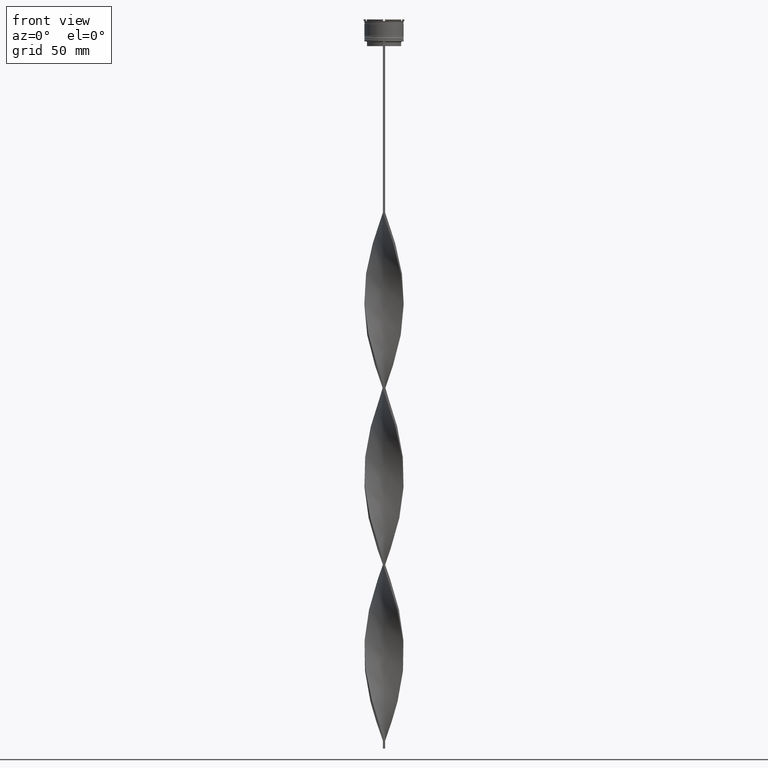
[diagram: clean part render]
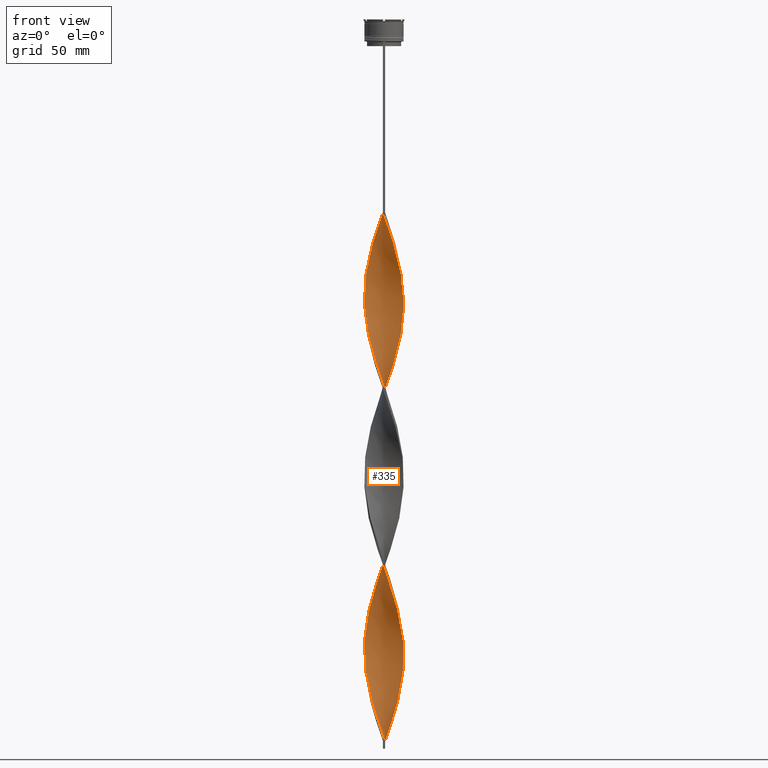
[diagram: same view with one face highlighted and labeled with its STEP entity id]
A machine part, front view. The second image highlights one B-rep face of the part: STEP entity #335.
In plain terms, the highlighted face is a freeform B-spline surface patch.
Its self-contained STEP definition (entity closure, byte-faithful):
#1 = CARTESIAN_POINT ( 'NONE',  ( -8.955724128969263731, 8.752571355081759208, -265.5454545454545041 ) ) ;
#10 = CARTESIAN_POINT ( 'NONE',  ( -4.510463666007690442, -11.68196120168289553, -443.7272727272727479 ) ) ;
#13 = CARTESIAN_POINT ( 'NONE',  ( 8.955724128969263731, 8.752571355081759208, -316.4545454545454390 ) ) ;
#23 = CARTESIAN_POINT ( 'NONE',  ( 4.510463666007691330, -11.68196120168289553, -138.2727272727272805 ) ) ;
#28 = CARTESIAN_POINT ( 'NONE',  ( 7.618946993550370195, -9.938015229887191992, -372.4545454545454959 ) ) ;
#35 = CARTESIAN_POINT ( 'NONE',  ( -12.00455592986043030, 3.674953311088231533, -390.2727272727272521 ) ) ;
#44 = CARTESIAN_POINT ( 'NONE',  ( -12.26603189480669442, 2.521301559826764738, -285.9090909090908781 ) ) ;
#48 = CARTESIAN_POINT ( 'NONE',  ( -12.50000000000000000, 0.7500000000000021094, -291.0000000000000568 ) ) ;
#56 = CARTESIAN_POINT ( 'NONE',  ( -8.752571355081757432, 8.955724128969265507, -372.4545454545454959 ) ) ;
#63 = CARTESIAN_POINT ( 'NONE',  ( -10.48293307345756986, 6.908166116216014174, -156.0909090909090935 ) ) ;
#68 = CARTESIAN_POINT ( 'NONE',  ( -6.127070068571584649, 10.92114977348146354, -255.3636363636363455 ) ) ;
#73 = CARTESIAN_POINT ( 'NONE',  ( 8.955724128969265507, -8.752571355081757432, -377.5454545454545610 ) ) ;
#83 = CARTESIAN_POINT ( 'NONE',  ( -8.112045323846695410, 9.581720387053804799, -369.9090909090909349 ) ) ;
#93 = CARTESIAN_POINT ( 'NONE',  ( -12.00455592986043030, 3.674953311088231533, -166.2727272727272236 ) ) ;
#97 = CARTESIAN_POINT ( 'NONE',  ( -9.393097386316817676, -8.329727870884724439, -319.0000000000000000 ) ) ;
#106 = CARTESIAN_POINT ( 'NONE',  ( -10.11018854729806549, -7.388950367818355680, -423.3636363636363740 ) ) ;
#114 = CARTESIAN_POINT ( 'NONE',  ( -11.47902065681779860, -5.083967906288924254, -191.7272727272727479 ) ) ;
#119 = CARTESIAN_POINT ( 'NONE',  ( -7.388950367818353904, -10.11018854729806726, -326.6363636363636260 ) ) ;
#122 = CARTESIAN_POINT ( 'NONE',  ( 5.874911659039468326, 11.05883868218006505, -443.7272727272727479 ) ) ;
#127 = CARTESIAN_POINT ( 'NONE',  ( 0.7500000000000013323, 12.50000000000000000, -459.0000000000000000 ) ) ;
#135 = CARTESIAN_POINT ( 'NONE',  ( 12.47950415221662368, 1.036569397005363324, -408.0909090909091219 ) ) ;
#139 = CARTESIAN_POINT ( 'NONE',  ( -1.929121149525763634, 12.40536724576414862, -242.6363636363635976 ) ) ;
#150 = CARTESIAN_POINT ( 'NONE',  ( 0.7500000000000003331, 4.166666666666667851, -459.0000000000000000 ) ) ;
#162 = CARTESIAN_POINT ( 'NONE',  ( 12.55364105866909874, 0.1440176444849620985, -405.5454545454545610 ) ) ;
#167 = CARTESIAN_POINT ( 'NONE',  ( 6.908166116216012398, -10.48293307345756986, -369.9090909090908781 ) ) ;
#168 = CARTESIAN_POINT ( 'NONE',  ( 8.112045323846695410, -9.581720387053804799, -257.9090909090909349 ) ) ;
#185 = CARTESIAN_POINT ( 'NONE',  ( 12.50000000000000000, 0.7499999999999975575, -291.0000000000000568 ) ) ;
#189 = CARTESIAN_POINT ( 'NONE',  ( -6.127070068571586425, -10.92114977348146354, -214.6363636363636260 ) ) ;
#192 = CARTESIAN_POINT ( 'NONE',  ( 1.644017644484963681, 12.44635894133090126, -456.4545454545454390 ) ) ;
#206 = CARTESIAN_POINT ( 'NONE',  ( -1.644017644484962792, 12.44635894133090126, -349.5454545454545610 ) ) ;
#210 = CARTESIAN_POINT ( 'NONE',  ( 5.874911659039470990, -11.05883868218006505, -250.2727272727273089 ) ) ;
#229 = CARTESIAN_POINT ( 'NONE',  ( 12.26603189480669798, 2.521301559826760297, -296.0909090909090651 ) ) ;
#234 = CARTESIAN_POINT ( 'NONE',  ( -12.20496158781229035, 2.802037230306999582, -168.8181818181818130 ) ) ;
#245 = CARTESIAN_POINT ( 'NONE',  ( 10.63865670754232795, -6.665855411790015062, -161.1818181818181870 ) ) ;
#251 = LINE ( 'NONE', #3865, #378 ) ;
#253 = CARTESIAN_POINT ( 'NONE',  ( 12.40536724576414684, -1.929121149525772516, -283.3636363636362603 ) ) ;
#257 = CARTESIAN_POINT ( 'NONE',  ( -12.26603189480669798, -2.521301559826762073, -184.0909090909090935 ) ) ;
#273 = CARTESIAN_POINT ( 'NONE',  ( -8.329727870884727992, -9.393097386316815900, -207.0000000000000284 ) ) ;
#276 = CARTESIAN_POINT ( 'NONE',  ( -12.44635894133090126, -1.644017644484961460, -405.5454545454545610 ) ) ;
#285 = CARTESIAN_POINT ( 'NONE',  ( 5.874911659039468326, 11.05883868218006505, -219.7272727272727195 ) ) ;
#298 = CARTESIAN_POINT ( 'NONE',  ( -10.48293307345756809, 6.908166116216014174, -380.0909090909090651 ) ) ;
#309 = CARTESIAN_POINT ( 'NONE',  ( -4.510463666007693107, 11.68196120168289553, -250.2727272727273089 ) ) ;
#326 = CARTESIAN_POINT ( 'NONE',  ( 7.618946993550370195, -9.938015229887191992, -148.4545454545454390 ) ) ;
#330 = CARTESIAN_POINT ( 'NONE',  ( 12.26603189480669620, -2.521301559826762961, -173.9090909090909065 ) ) ;
#335 = ADVANCED_FACE ( 'NONE', ( #3942 ), #3043, .T. ) ;
#349 = CARTESIAN_POINT ( 'NONE',  ( 4.510463666007691330, -11.68196120168289553, -362.2727272727273089 ) ) ;
#353 = CARTESIAN_POINT ( 'NONE',  ( -12.20496158781229035, 2.802037230306999582, -392.8181818181818699 ) ) ;
#372 = CARTESIAN_POINT ( 'NONE',  ( -2.521301559826765626, -12.26603189480669442, -341.9090909090909349 ) ) ;
#378 = VECTOR ( 'NONE', #3131, 1000.000000000000000 ) ;
#382 = CARTESIAN_POINT ( 'NONE',  ( 6.127070068571582873, 10.92114977348146354, -326.6363636363636260 ) ) ;
#392 = CARTESIAN_POINT ( 'NONE',  ( -5.083967906288929584, -11.47902065681779682, -334.2727272727272521 ) ) ;
#397 = CARTESIAN_POINT ( 'NONE',  ( 1.036569397005364879, -12.47950415221662190, -352.0909090909091219 ) ) ;
#403 = CARTESIAN_POINT ( 'NONE',  ( -12.50000000000000000, -0.7499999999999990008, -403.0000000000000000 ) ) ;
#409 = CARTESIAN_POINT ( 'NONE',  ( 7.388950367818358345, 10.11018854729806549, -438.6363636363636829 ) ) ;
#413 = CARTESIAN_POINT ( 'NONE',  ( 1.644017644484963681, 12.44635894133090126, -232.4545454545454390 ) ) ;
#418 = CARTESIAN_POINT ( 'NONE',  ( -8.112045323846698963, -9.581720387053801247, -324.0909090909090651 ) ) ;
#428 = CARTESIAN_POINT ( 'NONE',  ( -10.63865670754232617, -6.665855411790015062, -420.8181818181818130 ) ) ;
#434 = CARTESIAN_POINT ( 'NONE',  ( 8.752571355081759208, 8.955724128969263731, -433.5454545454545610 ) ) ;
#439 = CARTESIAN_POINT ( 'NONE',  ( -8.955724128969263731, 8.752571355081759208, -265.5454545454545041 ) ) ;
#450 = CARTESIAN_POINT ( 'NONE',  ( -3.674953311088228869, -12.00455592986043030, -446.2727272727271952 ) ) ;
#458 = EDGE_CURVE ( 'NONE', #469, #1029, #2533, .T. ) ;
#466 = CARTESIAN_POINT ( 'NONE',  ( 12.00455592986043030, 3.674953311088229757, -415.7272727272726911 ) ) ;
#469 = VERTEX_POINT ( 'NONE', #127 ) ;
#470 = CARTESIAN_POINT ( 'NONE',  ( 9.938015229887191992, 7.618946993550368418, -204.4545454545454390 ) ) ;
#489 = CARTESIAN_POINT ( 'NONE',  ( -11.78236275255014576, -4.241276690728743581, -189.1818181818181870 ) ) ;
#493 = CARTESIAN_POINT ( 'NONE',  ( -1.644017644484959684, -12.44635894133090126, -344.4545454545453254 ) ) ;
#494 = CARTESIAN_POINT ( 'NONE',  ( -6.665855411790014173, 10.63865670754232795, -140.8181818181818130 ) ) ;
#509 = CARTESIAN_POINT ( 'NONE',  ( -12.20496158781229035, 2.802037230306999582, -168.8181818181818130 ) ) ;
#513 = CARTESIAN_POINT ( 'NONE',  ( 8.329727870884727992, -9.393097386316817676, -374.9999999999999432 ) ) ;
#517 = CARTESIAN_POINT ( 'NONE',  ( 0.7500000000000013323, 12.50000000000000000, -459.0000000000000000 ) ) ;
#536 = CARTESIAN_POINT ( 'NONE',  ( -8.955724128969265507, -8.752571355081755655, -204.4545454545454390 ) ) ;
#542 = CARTESIAN_POINT ( 'NONE',  ( -8.329727870884727992, -9.393097386316815900, -207.0000000000000284 ) ) ;
#546 = CARTESIAN_POINT ( 'NONE',  ( 7.388950367818358345, 10.11018854729806549, -438.6363636363636829 ) ) ;
#559 = CARTESIAN_POINT ( 'NONE',  ( 6.127070068571582873, 10.92114977348146354, -326.6363636363636260 ) ) ;
#563 = CARTESIAN_POINT ( 'NONE',  ( -9.393097386316817676, 8.329727870884727992, -150.9999999999999716 ) ) ;
#579 = CARTESIAN_POINT ( 'NONE',  ( 2.802037230306999582, 12.20496158781229035, -336.8181818181818130 ) ) ;
#582 = CARTESIAN_POINT ( 'NONE',  ( 12.40536724576414684, -1.929121149525772516, -283.3636363636363171 ) ) ;
#591 = CARTESIAN_POINT ( 'NONE',  ( 12.20496158781229035, 2.802037230306998694, -189.1818181818181870 ) ) ;
#602 = CARTESIAN_POINT ( 'NONE',  ( 8.955724128969263731, 8.752571355081759208, -316.4545454545454390 ) ) ;
#607 = CARTESIAN_POINT ( 'NONE',  ( 5.083967906288926031, -11.47902065681779860, -247.7272727272727195 ) ) ;
#626 = CARTESIAN_POINT ( 'NONE',  ( -3.398585475168563352, 12.08570484828248759, -354.6363636363635692 ) ) ;
#630 = CARTESIAN_POINT ( 'NONE',  ( 6.665855411790015062, -10.63865670754232795, -252.8181818181817846 ) ) ;
#639 = CARTESIAN_POINT ( 'NONE',  ( 12.00455592986043030, 3.674953311088229757, -191.7272727272727479 ) ) ;
#647 = CARTESIAN_POINT ( 'NONE',  ( -8.955724128969265507, -8.752571355081755655, -428.4545454545454959 ) ) ;
#650 = CARTESIAN_POINT ( 'NONE',  ( -4.510463666007690442, -11.68196120168289553, -443.7272727272727479 ) ) ;
#660 = CARTESIAN_POINT ( 'NONE',  ( -1.929121149525763634, 12.40536724576414862, -242.6363636363636260 ) ) ;
#690 = EDGE_CURVE ( 'NONE', #4472, #469, #4493, .T. ) ;
#699 = CARTESIAN_POINT ( 'NONE',  ( 11.47902065681779860, -5.083967906288926031, -166.2727272727272236 ) ) ;
#703 = CARTESIAN_POINT ( 'NONE',  ( -5.083967906288929584, -11.47902065681779682, -334.2727272727272521 ) ) ;
#718 = CARTESIAN_POINT ( 'NONE',  ( 0.1440176444849632920, -12.55364105866909874, -125.5454545454545467 ) ) ;
#723 = CARTESIAN_POINT ( 'NONE',  ( 10.63865670754232795, -6.665855411790015062, -385.1818181818181301 ) ) ;
#727 = CARTESIAN_POINT ( 'NONE',  ( -12.00455592986043030, 3.674953311088231533, -390.2727272727272521 ) ) ;
#730 = CARTESIAN_POINT ( 'NONE',  ( -4.241276690728743581, 11.78236275255014576, -357.1818181818181301 ) ) ;
#744 = CARTESIAN_POINT ( 'NONE',  ( -11.78236275255014576, 4.241276690728744470, -280.8181818181818699 ) ) ;
#749 = CARTESIAN_POINT ( 'NONE',  ( 11.78236275255014576, -4.241276690728745358, -392.8181818181818699 ) ) ;
#768 = CARTESIAN_POINT ( 'NONE',  ( -10.92114977348146532, -6.127070068571578432, -311.3636363636363740 ) ) ;
#773 = CARTESIAN_POINT ( 'NONE',  ( -12.20496158781229035, -2.802037230306993809, -301.1818181818182438 ) ) ;
#775 = VERTEX_POINT ( 'NONE', #3032 ) ;
#781 = CARTESIAN_POINT ( 'NONE',  ( -11.78236275255014576, -4.241276690728743581, -413.1818181818181870 ) ) ;
#787 = CARTESIAN_POINT ( 'NONE',  ( -2.521301559826763405, 12.26603189480669620, -128.0909090909090935 ) ) ;
#791 = CARTESIAN_POINT ( 'NONE',  ( 5.874911659039468326, 11.05883868218006505, -219.7272727272727195 ) ) ;
#797 = CARTESIAN_POINT ( 'NONE',  ( -9.393097386316817676, -8.329727870884724439, -319.0000000000000000 ) ) ;
#803 = CARTESIAN_POINT ( 'NONE',  ( -11.05883868218006505, -5.874911659039468326, -418.2727272727273089 ) ) ;
#806 = CARTESIAN_POINT ( 'NONE',  ( -12.40536724576414862, 1.929121149525765411, -395.3636363636363171 ) ) ;
#812 = CARTESIAN_POINT ( 'NONE',  ( 11.78236275255014576, -4.241276690728745358, -392.8181818181818699 ) ) ;
#817 = CARTESIAN_POINT ( 'NONE',  ( 10.48293307345756986, 6.908166116216014174, -201.9090909090908781 ) ) ;
#818 = CARTESIAN_POINT ( 'NONE',  ( -5.083967906288924254, 11.47902065681779860, -135.7272727272726911 ) ) ;
#822 = CARTESIAN_POINT ( 'NONE',  ( 8.752571355081759208, 8.955724128969263731, -433.5454545454545610 ) ) ;
#839 = CARTESIAN_POINT ( 'NONE',  ( -4.241276690728743581, 11.78236275255014576, -133.1818181818181870 ) ) ;
#843 = CARTESIAN_POINT ( 'NONE',  ( -10.48293307345757164, -6.908166116216012398, -313.9090909090908212 ) ) ;
#861 = CARTESIAN_POINT ( 'NONE',  ( -7.388950367818355680, 10.11018854729806726, -143.3636363636363740 ) ) ;
#865 = CARTESIAN_POINT ( 'NONE',  ( 5.345974020927152459, -11.35936647350535722, -364.8181818181818130 ) ) ;
#882 = CARTESIAN_POINT ( 'NONE',  ( 9.393097386316817676, 8.329727870884726215, -430.9999999999999432 ) ) ;
#887 = CARTESIAN_POINT ( 'NONE',  ( 4.241276690728740029, -11.78236275255014576, -245.1818181818181870 ) ) ;
#890 = CARTESIAN_POINT ( 'NONE',  ( 9.938015229887191992, 7.618946993550368418, -428.4545454545454959 ) ) ;
#909 = CARTESIAN_POINT ( 'NONE',  ( -7.618946993550371971, -9.938015229887190216, -209.5454545454545325 ) ) ;
#915 = CARTESIAN_POINT ( 'NONE',  ( 12.00455592986042852, -3.674953311088235086, -278.2727272727272521 ) ) ;
#919 = CARTESIAN_POINT ( 'NONE',  ( 4.241276690728743581, 11.78236275255014576, -448.8181818181818130 ) ) ;
#931 = CARTESIAN_POINT ( 'NONE',  ( -5.874911659039469214, 11.05883868218006505, -362.2727272727273089 ) ) ;
#935 = CARTESIAN_POINT ( 'NONE',  ( 12.44635894133090126, 1.644017644484965457, -293.5454545454545041 ) ) ;
#953 = CARTESIAN_POINT ( 'NONE',  ( 11.05883868218006683, 5.874911659039464773, -306.2727272727272521 ) ) ;
#956 = CARTESIAN_POINT ( 'NONE',  ( 1.644017644484960572, -12.44635894133090126, -237.5454545454545325 ) ) ;
#965 = CARTESIAN_POINT ( 'NONE',  ( 12.55364105866909874, 0.1440176444849620985, -181.5454545454545041 ) ) ;
#979 = CARTESIAN_POINT ( 'NONE',  ( 11.68196120168289553, -4.510463666007691330, -275.7272727272726911 ) ) ;
#984 = CARTESIAN_POINT ( 'NONE',  ( -4.510463666007690442, -11.68196120168289553, -219.7272727272727195 ) ) ;
#996 = CARTESIAN_POINT ( 'NONE',  ( 8.112045323846697187, 9.581720387053803023, -212.0909090909090935 ) ) ;
#1007 = CARTESIAN_POINT ( 'NONE',  ( -12.08570484828248759, -3.398585475168564685, -410.6363636363635692 ) ) ;
#1015 = CARTESIAN_POINT ( 'NONE',  ( 0.7500000000000013323, 12.50000000000000000, -235.0000000000000000 ) ) ;
#1029 = VERTEX_POINT ( 'NONE', #3227 ) ;
#1035 = CARTESIAN_POINT ( 'NONE',  ( 1.036569397005364879, -12.47950415221662190, -128.0909090909090935 ) ) ;
#1055 = CARTESIAN_POINT ( 'NONE',  ( 9.581720387053804799, -8.112045323846698963, -156.0909090909090935 ) ) ;
#1061 = CARTESIAN_POINT ( 'NONE',  ( -8.752571355081753879, -8.955724128969267284, -321.5454545454545610 ) ) ;
#1081 = CARTESIAN_POINT ( 'NONE',  ( -3.398585475168570902, -12.08570484828248581, -339.3636363636363171 ) ) ;
#1086 = CARTESIAN_POINT ( 'NONE',  ( -10.48293307345756986, 6.908166116216014174, -380.0909090909090651 ) ) ;
#1089 = CARTESIAN_POINT ( 'NONE',  ( -6.127070068571586425, -10.92114977348146354, -438.6363636363636829 ) ) ;
#1102 = CARTESIAN_POINT ( 'NONE',  ( 12.50000000000000000, -0.7500000000000005551, -403.0000000000000000 ) ) ;
#1106 = CARTESIAN_POINT ( 'NONE',  ( -8.329727870884727992, -9.393097386316815900, -430.9999999999999432 ) ) ;
#1108 = CARTESIAN_POINT ( 'NONE',  ( -1.929121149525766521, -12.40536724576414862, -451.3636363636364308 ) ) ;
#1122 = CARTESIAN_POINT ( 'NONE',  ( -4.510463666007693107, 11.68196120168289553, -250.2727272727273089 ) ) ;
#1127 = CARTESIAN_POINT ( 'NONE',  ( 12.40536724576414862, 1.929121149525767409, -410.6363636363635692 ) ) ;
#1134 = CARTESIAN_POINT ( 'NONE',  ( 0.7499999999999983347, -12.50000000000000000, -459.0000000000000000 ) ) ;
#1137 = CARTESIAN_POINT ( 'NONE',  ( -6.908166116216015062, -10.48293307345756631, -436.0909090909090651 ) ) ;
#1144 = CARTESIAN_POINT ( 'NONE',  ( 5.874911659039468326, 11.05883868218006505, -443.7272727272727479 ) ) ;
#1149 = CARTESIAN_POINT ( 'NONE',  ( -9.581720387053803023, 8.112045323846698963, -268.0909090909090082 ) ) ;
#1154 = CARTESIAN_POINT ( 'NONE',  ( 12.55364105866909874, 0.1440176444849620985, -405.5454545454545610 ) ) ;
#1159 = CARTESIAN_POINT ( 'NONE',  ( -11.78236275255014576, -4.241276690728743581, -413.1818181818181870 ) ) ;
#1161 = CARTESIAN_POINT ( 'NONE',  ( -3.398585475168563796, 12.08570484828248759, -354.6363636363635692 ) ) ;
#1167 = CARTESIAN_POINT ( 'NONE',  ( 4.241276690728743581, 11.78236275255014576, -448.8181818181818130 ) ) ;
#1171 = CARTESIAN_POINT ( 'NONE',  ( 12.40536724576414862, 1.929121149525767409, -186.6363636363636260 ) ) ;
#1191 = CARTESIAN_POINT ( 'NONE',  ( -9.581720387053804799, -8.112045323846698963, -201.9090909090908781 ) ) ;
#1195 = CARTESIAN_POINT ( 'NONE',  ( -12.44635894133090126, 1.644017644484958796, -288.4545454545454390 ) ) ;
#1221 = CARTESIAN_POINT ( 'NONE',  ( 6.665855411790016838, 10.63865670754232440, -441.1818181818181301 ) ) ;
#1224 = EDGE_LOOP ( 'NONE', ( #3089, #3251, #3135, #2500 ) ) ;
#1225 = CARTESIAN_POINT ( 'NONE',  ( -12.20496158781229035, -2.802037230306993809, -301.1818181818182438 ) ) ;
#1242 = CARTESIAN_POINT ( 'NONE',  ( 11.47902065681779860, -5.083967906288926031, -390.2727272727272521 ) ) ;
#1246 = CARTESIAN_POINT ( 'NONE',  ( 4.510463666007691330, -11.68196120168289553, -362.2727272727273089 ) ) ;
#1247 = CARTESIAN_POINT ( 'NONE',  ( 2.521301559826761185, -12.26603189480669798, -240.0909090909090651 ) ) ;
#1262 = CARTESIAN_POINT ( 'NONE',  ( 9.938015229887190216, -7.618946993550371971, -265.5454545454545041 ) ) ;
#1266 = CARTESIAN_POINT ( 'NONE',  ( -12.40536724576414862, 1.929121149525765411, -171.3636363636363171 ) ) ;
#1269 = CARTESIAN_POINT ( 'NONE',  ( 11.68196120168289553, 4.510463666007690442, -418.2727272727273089 ) ) ;
#1286 = CARTESIAN_POINT ( 'NONE',  ( 12.47950415221662368, -1.036569397005365989, -285.9090909090908781 ) ) ;
#1292 = CARTESIAN_POINT ( 'NONE',  ( 11.35936647350535367, -5.345974020927156900, -273.1818181818181870 ) ) ;
#1300 = CARTESIAN_POINT ( 'NONE',  ( -0.7499999999999997780, -12.50000000000000000, -123.0000000000000000 ) ) ;
#1301 = CARTESIAN_POINT ( 'NONE',  ( 12.50000000000000000, -0.7500000000000005551, -179.0000000000000000 ) ) ;
#1308 = CARTESIAN_POINT ( 'NONE',  ( -1.929121149525766521, -12.40536724576414862, -227.3636363636363171 ) ) ;
#1312 = CARTESIAN_POINT ( 'NONE',  ( 11.05883868218006683, 5.874911659039464773, -306.2727272727272521 ) ) ;
#1321 = CARTESIAN_POINT ( 'NONE',  ( 4.510463666007691330, -11.68196120168289553, -138.2727272727272805 ) ) ;
#1329 = CARTESIAN_POINT ( 'NONE',  ( 3.674953311088235974, 12.00455592986042852, -334.2727272727272521 ) ) ;
#1333 = CARTESIAN_POINT ( 'NONE',  ( -11.05883868218006505, -5.874911659039468326, -194.2727272727272521 ) ) ;
#1342 = CARTESIAN_POINT ( 'NONE',  ( 12.47950415221662368, 1.036569397005363324, -184.0909090909090935 ) ) ;
#1354 = CARTESIAN_POINT ( 'NONE',  ( -5.345974020927156900, -11.35936647350535367, -217.1818181818181586 ) ) ;
#1359 = CARTESIAN_POINT ( 'NONE',  ( 7.618946993550366642, 9.938015229887193769, -321.5454545454545610 ) ) ;
#1370 = CARTESIAN_POINT ( 'NONE',  ( 7.618946993550370195, -9.938015229887191992, -148.4545454545454390 ) ) ;
#1391 = CARTESIAN_POINT ( 'NONE',  ( 2.521301559826763850, 12.26603189480669620, -229.9090909090909065 ) ) ;
#1409 = CARTESIAN_POINT ( 'NONE',  ( 6.908166116216012398, -10.48293307345756809, -369.9090909090909349 ) ) ;
#1426 = CARTESIAN_POINT ( 'NONE',  ( 6.908166116216012398, -10.48293307345756986, -145.9090909090909065 ) ) ;
#1432 = CARTESIAN_POINT ( 'NONE',  ( -5.874911659039470102, -11.05883868218006505, -331.7272727272727479 ) ) ;
#1440 = CARTESIAN_POINT ( 'NONE',  ( -7.388950367818355680, 10.11018854729806726, -367.3636363636363740 ) ) ;
#1442 = CARTESIAN_POINT ( 'NONE',  ( -10.11018854729806549, -7.388950367818355680, -423.3636363636363740 ) ) ;
#1452 = CARTESIAN_POINT ( 'NONE',  ( -0.7499999999999997780, -12.50000000000000000, -123.0000000000000000 ) ) ;
#1457 = CARTESIAN_POINT ( 'NONE',  ( -12.08570484828248581, 3.398585475168570014, -283.3636363636363171 ) ) ;
#1463 = CARTESIAN_POINT ( 'NONE',  ( -11.35936647350535722, 5.345974020927153347, -385.1818181818180733 ) ) ;
#1466 = CARTESIAN_POINT ( 'NONE',  ( -11.68196120168289553, 4.510463666007692218, -387.7272727272727479 ) ) ;
#1475 = CARTESIAN_POINT ( 'NONE',  ( 12.00455592986043030, 3.674953311088229757, -191.7272727272727479 ) ) ;
#1480 = CARTESIAN_POINT ( 'NONE',  ( -11.35936647350535722, -5.345974020927152459, -308.8181818181817562 ) ) ;
#1484 = CARTESIAN_POINT ( 'NONE',  ( -12.08570484828248759, -3.398585475168564241, -410.6363636363636260 ) ) ;
#1487 = CARTESIAN_POINT ( 'NONE',  ( -11.05883868218006505, -5.874911659039468326, -418.2727272727273089 ) ) ;
#1496 = CARTESIAN_POINT ( 'NONE',  ( -8.752571355081757432, 8.955724128969265507, -148.4545454545454390 ) ) ;
#1501 = CARTESIAN_POINT ( 'NONE',  ( 4.241276690728743581, 11.78236275255014576, -224.8181818181818130 ) ) ;
#1507 = CARTESIAN_POINT ( 'NONE',  ( -6.127070068571584649, 10.92114977348146354, -255.3636363636363455 ) ) ;
#1517 = CARTESIAN_POINT ( 'NONE',  ( 0.7499999999999983347, -12.50000000000000000, -459.0000000000000000 ) ) ;
#1524 = CARTESIAN_POINT ( 'NONE',  ( -9.938015229887191992, 7.618946993550370195, -153.5454545454545325 ) ) ;
#1528 = CARTESIAN_POINT ( 'NONE',  ( 5.083967906288923366, 11.47902065681780215, -222.2727272727272805 ) ) ;
#1545 = CARTESIAN_POINT ( 'NONE',  ( -11.05883868218006505, -5.874911659039468326, -194.2727272727272521 ) ) ;
#1550 = CARTESIAN_POINT ( 'NONE',  ( -2.521301559826765626, -12.26603189480669442, -341.9090909090909349 ) ) ;
#1567 = CARTESIAN_POINT ( 'NONE',  ( 11.35936647350535544, 5.345974020927153347, -420.8181818181818130 ) ) ;
#1571 = CARTESIAN_POINT ( 'NONE',  ( -7.618946993550368418, 9.938015229887193769, -260.4545454545454959 ) ) ;
#1595 = CARTESIAN_POINT ( 'NONE',  ( 10.92114977348146354, 6.127070068571584649, -423.3636363636363740 ) ) ;
#1599 = CARTESIAN_POINT ( 'NONE',  ( 8.955724128969265507, -8.752571355081757432, -377.5454545454545610 ) ) ;
#1600 = CARTESIAN_POINT ( 'NONE',  ( -11.68196120168289553, 4.510463666007692218, -163.7272727272727195 ) ) ;
#1616 = CARTESIAN_POINT ( 'NONE',  ( 9.581720387053806576, 8.112045323846697187, -313.9090909090908212 ) ) ;
#1620 = CARTESIAN_POINT ( 'NONE',  ( -0.1440176444849642912, -12.55364105866909874, -232.4545454545454390 ) ) ;
#1623 = CARTESIAN_POINT ( 'NONE',  ( 5.083967906288923366, 11.47902065681780215, -446.2727272727271952 ) ) ;
#1636 = CARTESIAN_POINT ( 'NONE',  ( -2.521301559826763405, 12.26603189480669620, -352.0909090909091219 ) ) ;
#1640 = CARTESIAN_POINT ( 'NONE',  ( -9.581720387053804799, -8.112045323846697187, -201.9090909090909065 ) ) ;
#1651 = CARTESIAN_POINT ( 'NONE',  ( 12.26603189480669620, -2.521301559826762961, -173.9090909090909065 ) ) ;
#1661 = CARTESIAN_POINT ( 'NONE',  ( 10.92114977348146532, -6.127070068571582873, -270.6363636363636829 ) ) ;
#1668 = CARTESIAN_POINT ( 'NONE',  ( -3.674953311088228869, -12.00455592986043030, -222.2727272727272805 ) ) ;
#1677 = CARTESIAN_POINT ( 'NONE',  ( 12.50000000000000000, -0.7500000000000005551, -179.0000000000000000 ) ) ;
#1685 = CARTESIAN_POINT ( 'NONE',  ( 1.929121149525773404, 12.40536724576414684, -339.3636363636362603 ) ) ;
#1688 = CARTESIAN_POINT ( 'NONE',  ( -11.78236275255014576, -4.241276690728743581, -189.1818181818181870 ) ) ;
#1698 = CARTESIAN_POINT ( 'NONE',  ( 5.345974020927152459, -11.35936647350535722, -140.8181818181818130 ) ) ;
#1705 = CARTESIAN_POINT ( 'NONE',  ( 1.644017644484960572, -12.44635894133090126, -237.5454545454545325 ) ) ;
#1708 = CARTESIAN_POINT ( 'NONE',  ( -9.581720387053804799, -8.112045323846697187, -425.9090909090908212 ) ) ;
#1719 = CARTESIAN_POINT ( 'NONE',  ( 5.083967906288923366, 11.47902065681780215, -222.2727272727272805 ) ) ;
#1734 = CARTESIAN_POINT ( 'NONE',  ( -12.20496158781229035, 2.802037230306999582, -392.8181818181818699 ) ) ;
#1745 = CARTESIAN_POINT ( 'NONE',  ( 3.674953311088230645, -12.00455592986043030, -135.7272727272726911 ) ) ;
#1763 = CARTESIAN_POINT ( 'NONE',  ( 11.05883868218006505, -5.874911659039470102, -387.7272727272727479 ) ) ;
#1781 = CARTESIAN_POINT ( 'NONE',  ( -0.7499999999999997780, -12.50000000000000000, -347.0000000000000000 ) ) ;
#1807 = CARTESIAN_POINT ( 'NONE',  ( 2.802037230306998694, -12.20496158781229035, -357.1818181818181301 ) ) ;
#1817 = CARTESIAN_POINT ( 'NONE',  ( 4.510463666007692218, 11.68196120168289553, -331.7272727272727479 ) ) ;
#1826 = CARTESIAN_POINT ( 'NONE',  ( 9.393097386316817676, 8.329727870884726215, -207.0000000000000284 ) ) ;
#1831 = CARTESIAN_POINT ( 'NONE',  ( -6.908166116216012398, 10.48293307345756809, -257.9090909090909349 ) ) ;
#1836 = CARTESIAN_POINT ( 'NONE',  ( -8.752571355081757432, 8.955724128969265507, -372.4545454545454959 ) ) ;
#1838 = CARTESIAN_POINT ( 'NONE',  ( 9.581720387053806576, 8.112045323846695410, -313.9090909090908781 ) ) ;
#1844 = CARTESIAN_POINT ( 'NONE',  ( 2.521301559826763850, 12.26603189480669620, -453.9090909090909349 ) ) ;
#1848 = CARTESIAN_POINT ( 'NONE',  ( -5.345974020927153347, 11.35936647350535722, -252.8181818181817562 ) ) ;
#1853 = CARTESIAN_POINT ( 'NONE',  ( -4.241276690728745358, -11.78236275255014576, -336.8181818181818130 ) ) ;
#1861 = CARTESIAN_POINT ( 'NONE',  ( -3.674953311088228869, -12.00455592986043030, -446.2727272727271952 ) ) ;
#1868 = CARTESIAN_POINT ( 'NONE',  ( -3.398585475168563352, 12.08570484828248759, -130.6363636363636545 ) ) ;
#1873 = CARTESIAN_POINT ( 'NONE',  ( 8.112045323846698963, 9.581720387053803023, -212.0909090909090651 ) ) ;
#1879 = CARTESIAN_POINT ( 'NONE',  ( 10.92114977348146354, 6.127070068571584649, -423.3636363636363740 ) ) ;
#1888 = CARTESIAN_POINT ( 'NONE',  ( -2.802037230306998694, -12.20496158781229035, -448.8181818181818130 ) ) ;
#1899 = CARTESIAN_POINT ( 'NONE',  ( -12.44635894133090126, -1.644017644484961460, -181.5454545454545041 ) ) ;
#1903 = CARTESIAN_POINT ( 'NONE',  ( -6.908166116216012398, 10.48293307345756986, -257.9090909090909349 ) ) ;
#1908 = CARTESIAN_POINT ( 'NONE',  ( 11.35936647350535544, 5.345974020927153347, -420.8181818181818130 ) ) ;
#1921 = CARTESIAN_POINT ( 'NONE',  ( 12.44635894133090126, -1.644017644484962792, -400.4545454545453822 ) ) ;
#1926 = CARTESIAN_POINT ( 'NONE',  ( -6.665855411790017726, -10.63865670754232440, -329.1818181818180733 ) ) ;
#1927 = CARTESIAN_POINT ( 'NONE',  ( -3.398585475168563796, 12.08570484828248759, -130.6363636363636260 ) ) ;
#1945 = CARTESIAN_POINT ( 'NONE',  ( -12.47950415221662190, 1.036569397005364879, -173.9090909090909065 ) ) ;
#1950 = CARTESIAN_POINT ( 'NONE',  ( 3.674953311088230645, -12.00455592986043030, -359.7272727272726343 ) ) ;
#1973 = CARTESIAN_POINT ( 'NONE',  ( 6.665855411790015950, -10.63865670754232795, -252.8181818181817562 ) ) ;
#1977 = CARTESIAN_POINT ( 'NONE',  ( 7.388950367818355680, -10.11018854729806726, -255.3636363636363455 ) ) ;
#1981 = CARTESIAN_POINT ( 'NONE',  ( 6.665855411790016838, 10.63865670754232440, -441.1818181818181301 ) ) ;
#1995 = CARTESIAN_POINT ( 'NONE',  ( 12.08570484828248759, 3.398585475168565129, -298.6363636363635692 ) ) ;
#1999 = CARTESIAN_POINT ( 'NONE',  ( -12.50000000000000000, -0.7499999999999990008, -179.0000000000000000 ) ) ;
#2008 = CARTESIAN_POINT ( 'NONE',  ( 12.08570484828248759, -3.398585475168562464, -171.3636363636363171 ) ) ;
#2016 = CARTESIAN_POINT ( 'NONE',  ( -0.1440176444849642912, -12.55364105866909874, -232.4545454545454390 ) ) ;
#2019 = CARTESIAN_POINT ( 'NONE',  ( 11.68196120168289553, -4.510463666007691330, -275.7272727272726911 ) ) ;
#2028 = CARTESIAN_POINT ( 'NONE',  ( 10.92114977348146354, 6.127070068571584649, -199.3636363636363455 ) ) ;
#2041 = CARTESIAN_POINT ( 'NONE',  ( 8.329727870884727992, 9.393097386316814124, -319.0000000000000000 ) ) ;
#2047 = CARTESIAN_POINT ( 'NONE',  ( -9.938015229887191992, 7.618946993550370195, -153.5454545454545325 ) ) ;
#2055 = CARTESIAN_POINT ( 'NONE',  ( 11.47902065681779860, -5.083967906288926031, -166.2727272727272521 ) ) ;
#2062 = CARTESIAN_POINT ( 'NONE',  ( -5.083967906288924254, 11.47902065681779860, -359.7272727272726343 ) ) ;
#2067 = CARTESIAN_POINT ( 'NONE',  ( -12.44635894133090126, -1.644017644484961460, -181.5454545454545041 ) ) ;
#2077 = CARTESIAN_POINT ( 'NONE',  ( 11.35936647350535544, 5.345974020927153347, -196.8181818181818130 ) ) ;
#2088 = CARTESIAN_POINT ( 'NONE',  ( -5.083967906288924254, 11.47902065681779860, -359.7272727272726911 ) ) ;
#2098 = CARTESIAN_POINT ( 'NONE',  ( -2.802037230306994697, 12.20496158781229035, -245.1818181818181870 ) ) ;
#2141 = CARTESIAN_POINT ( 'NONE',  ( -1.644017644484959684, -12.44635894133090126, -344.4545454545453822 ) ) ;
#2160 = CARTESIAN_POINT ( 'NONE',  ( 11.47902065681779860, -5.083967906288926031, -390.2727272727272521 ) ) ;
#2164 = CARTESIAN_POINT ( 'NONE',  ( -1.929121149525766521, -12.40536724576414862, -451.3636363636364877 ) ) ;
#2168 = CARTESIAN_POINT ( 'NONE',  ( -0.1440176444849642912, -12.55364105866909874, -456.4545454545454390 ) ) ;
#2182 = CARTESIAN_POINT ( 'NONE',  ( -2.802037230306994697, 12.20496158781229035, -245.1818181818181870 ) ) ;
#2186 = CARTESIAN_POINT ( 'NONE',  ( -11.47902065681779682, 5.083967906288928695, -278.2727272727272521 ) ) ;
#2192 = CARTESIAN_POINT ( 'NONE',  ( -8.112045323846697187, 9.581720387053804799, -369.9090909090908781 ) ) ;
#2204 = CARTESIAN_POINT ( 'NONE',  ( -11.05883868218006505, 5.874911659039469214, -275.7272727272726911 ) ) ;
#2209 = CARTESIAN_POINT ( 'NONE',  ( -7.618946993550368418, 9.938015229887193769, -260.4545454545454959 ) ) ;
#2215 = CARTESIAN_POINT ( 'NONE',  ( -5.345974020927156900, -11.35936647350535367, -441.1818181818181301 ) ) ;
#2221 = CARTESIAN_POINT ( 'NONE',  ( 12.08570484828248759, -3.398585475168562464, -395.3636363636362603 ) ) ;
#2226 = CARTESIAN_POINT ( 'NONE',  ( 10.92114977348146354, 6.127070068571584649, -199.3636363636363455 ) ) ;
#2231 = CARTESIAN_POINT ( 'NONE',  ( 5.345974020927152459, -11.35936647350535722, -364.8181818181818130 ) ) ;
#2236 = CARTESIAN_POINT ( 'NONE',  ( -11.68196120168289553, 4.510463666007692218, -387.7272727272727479 ) ) ;
#2248 = CARTESIAN_POINT ( 'NONE',  ( -12.55364105866909874, 0.1440176444849634030, -176.4545454545454390 ) ) ;
#2253 = CARTESIAN_POINT ( 'NONE',  ( 2.521301559826763850, 12.26603189480669620, -229.9090909090909065 ) ) ;
#2254 = CARTESIAN_POINT ( 'NONE',  ( -8.112045323846695410, 9.581720387053804799, -145.9090909090909065 ) ) ;
#2277 = CARTESIAN_POINT ( 'NONE',  ( -12.08570484828248759, -3.398585475168564241, -186.6363636363636260 ) ) ;
#2282 = CARTESIAN_POINT ( 'NONE',  ( -12.47950415221662368, -1.036569397005361548, -296.0909090909090651 ) ) ;
#2299 = CARTESIAN_POINT ( 'NONE',  ( -1.644017644484962792, 12.44635894133090126, -125.5454545454545467 ) ) ;
#2305 = CARTESIAN_POINT ( 'NONE',  ( 6.127070068571584649, -10.92114977348146354, -367.3636363636363740 ) ) ;
#2309 = CARTESIAN_POINT ( 'NONE',  ( 2.521301559826763850, 12.26603189480669620, -453.9090909090909349 ) ) ;
#2323 = CARTESIAN_POINT ( 'NONE',  ( 3.398585475168560688, -12.08570484828248759, -242.6363636363635976 ) ) ;
#2329 = CARTESIAN_POINT ( 'NONE',  ( -12.08570484828248759, -3.398585475168564685, -186.6363636363636260 ) ) ;
#2350 = CARTESIAN_POINT ( 'NONE',  ( -6.908166116216015062, -10.48293307345756809, -212.0909090909090651 ) ) ;
#2354 = CARTESIAN_POINT ( 'NONE',  ( 12.20496158781229035, -2.802037230306998694, -280.8181818181818699 ) ) ;
#2371 = CARTESIAN_POINT ( 'NONE',  ( -6.665855411790015062, 10.63865670754232795, -364.8181818181818130 ) ) ;
#2374 = CARTESIAN_POINT ( 'NONE',  ( 12.26603189480669798, 2.521301559826760297, -296.0909090909090651 ) ) ;
#2383 = CARTESIAN_POINT ( 'NONE',  ( 1.036569397005364879, -12.47950415221662190, -128.0909090909090935 ) ) ;
#2391 = CARTESIAN_POINT ( 'NONE',  ( 10.48293307345756809, -6.908166116216015062, -268.0909090909090082 ) ) ;
#2394 = CARTESIAN_POINT ( 'NONE',  ( 10.63865670754232795, 6.665855411790014173, -308.8181818181817562 ) ) ;
#2404 = CARTESIAN_POINT ( 'NONE',  ( 9.938015229887191992, 7.618946993550368418, -204.4545454545454390 ) ) ;
#2416 = CARTESIAN_POINT ( 'NONE',  ( 10.63865670754232795, 6.665855411790015062, -308.8181818181817562 ) ) ;
#2421 = CARTESIAN_POINT ( 'NONE',  ( -1.929121149525766521, -12.40536724576414862, -227.3636363636363455 ) ) ;
#2429 = CARTESIAN_POINT ( 'NONE',  ( 7.388950367818358345, 10.11018854729806549, -214.6363636363636260 ) ) ;
#2440 = CARTESIAN_POINT ( 'NONE',  ( -2.521301559826763405, 12.26603189480669620, -352.0909090909091219 ) ) ;
#2449 = CARTESIAN_POINT ( 'NONE',  ( -0.1440176444849612103, 12.55364105866909874, -237.5454545454545325 ) ) ;
#2454 =( BOUNDED_CURVE ( )  B_SPLINE_CURVE ( 2, ( #3352, #3736, #2601, #1927, #4038, #818, #4341, #494, #3714, #2254, #4092, #563, #2047, #3029, #3471, #3423, #1600, #3802, #234, #1266, #4179, #4468, #1999, #2067, #257, #2329, #1688, #3759, #1333, #3116, #3403, #1640, #4555, #542, #2761, #4201, #189, #3072, #984, #1668, #3851, #2421, #2739, #1620, #4512, #956, #1247, #3050, #887, #607, #210, #630, #1977, #168, #2675, #4114, #4489, #2696, #4136, #1292, #2019, #915, #2354, #582, #2719, #3782, #4158, #935, #2374, #3445, #3096, #4535, #1312, #2394, #3826, #1838, #13, #4227, #1359, #2567, #382, #4578, #1817, #2517, #3243, #2908, #4357, #2787, #3288, #2866, #2440, #1161, #730, #2088, #4308, #3264, #4004, #83, #56, #2590, #3625, #298, #4027, #3516, #1466, #35, #1734, #806, #3491, #3217, #403, #276, #2887, #1007, #781, #3871, #1487, #428, #1442, #1708, #4383, #4328, #3137, #1137, #1089, #2215, #650, #1861, #3953, #1108, #2540, #2168, #1517 ),
 .UNSPECIFIED., .F., .T. ) 
 B_SPLINE_CURVE_WITH_KNOTS ( ( 3, 2, 2, 2, 2, 2, 2, 2, 2, 2, 2, 2, 2, 2, 2, 2, 2, 2, 2, 2, 2, 2, 2, 2, 2, 2, 2, 2, 2, 2, 2, 2, 2, 2, 2, 2, 2, 2, 2, 2, 2, 2, 2, 2, 2, 2, 2, 2, 2, 2, 2, 2, 2, 2, 2, 2, 2, 2, 2, 2, 2, 2, 2, 2, 2, 2, 3 ),
 ( 0.000000000000000000, 0.01136363636363636222, 0.02272727272727272443, 0.03409090909090908839, 0.04545454545454544887, 0.05681818181818181629, 0.06818181818181817677, 0.07954545454545454419, 0.09090909090909089774, 0.1022727272727272790, 0.1136363636363636326, 0.1250000000000000000, 0.1363636363636363535, 0.1477272727272727348, 0.1590909090909090884, 0.1704545454545454419, 0.1818181818181817955, 0.1931818181818182045, 0.2045454545454545581, 0.2159090909090909116, 0.2272727272727272652, 0.2386363636363636465, 0.2500000000000000000, 0.2613636363636363535, 0.2727272727272727071, 0.2840909090909091161, 0.2954545454545454697, 0.3068181818181818232, 0.3181818181818181768, 0.3295454545454545303, 0.3409090909090908839, 0.3522727272727272929, 0.3636363636363635909, 0.3750000000000000000, 0.3863636363636364091, 0.3977272727272727071, 0.4090909090909091161, 0.4204545454545454697, 0.4318181818181818232, 0.4431818181818181768, 0.4545454545454545303, 0.4659090909090908839, 0.4772727272727272929, 0.4886363636363635909, 0.5000000000000000000, 0.5113636363636363535, 0.5227272727272727071, 0.5340909090909090606, 0.5454545454545454142, 0.5568181818181817677, 0.5681818181818182323, 0.5795454545454545858, 0.5909090909090909394, 0.6022727272727272929, 0.6136363636363636465, 0.6250000000000000000, 0.6363636363636363535, 0.6477272727272727071, 0.6590909090909090606, 0.6704545454545454142, 0.6818181818181817677, 0.6931818181818182323, 0.7045454545454545858, 0.7159090909090909394, 0.7272727272727271819, 0.7386363636363636465, 0.7500000000000000000 ),
 .UNSPECIFIED. ) 
 CURVE ( )  GEOMETRIC_REPRESENTATION_ITEM ( )  RATIONAL_B_SPLINE_CURVE ( ( 1.000000000000000000, 0.9974521146102535152, 1.000000000000000000, 0.9974521146102535152, 1.000000000000000000, 0.9974521146102535152, 1.000000000000000000, 0.9974521146102535152, 1.000000000000000000, 0.9974521146102535152, 1.000000000000000000, 0.9974521146102535152, 1.000000000000000000, 0.9974521146102535152, 1.000000000000000000, 0.9974521146102535152, 1.000000000000000000, 0.9974521146102535152, 1.000000000000000000, 0.9974521146102535152, 1.000000000000000000, 0.9974521146102535152, 1.000000000000000000, 0.9974521146102535152, 1.000000000000000000, 0.9974521146102535152, 1.000000000000000000, 0.9974521146102535152, 1.000000000000000000, 0.9974521146102535152, 1.000000000000000000, 0.9974521146102535152, 1.000000000000000000, 0.9974521146102535152, 1.000000000000000000, 0.9974521146102535152, 1.000000000000000000, 0.9974521146102535152, 1.000000000000000000, 0.9974521146102535152, 1.000000000000000000, 0.9974521146102535152, 1.000000000000000000, 0.9974521146102535152, 1.000000000000000000, 0.9974521146102535152, 1.000000000000000000, 0.9974521146102535152, 1.000000000000000000, 0.9974521146102535152, 1.000000000000000000, 0.9974521146102535152, 1.000000000000000000, 0.9974521146102535152, 1.000000000000000000, 0.9974521146102535152, 1.000000000000000000, 0.9974521146102535152, 1.000000000000000000, 0.9974521146102535152, 1.000000000000000000, 0.9974521146102535152, 1.000000000000000000, 0.9974521146102535152, 1.000000000000000000, 0.9974521146102535152, 1.000000000000000000, 0.9974521146102535152, 1.000000000000000000, 0.9974521146102535152, 1.000000000000000000, 0.9974521146102535152, 1.000000000000000000, 0.9974521146102535152, 1.000000000000000000, 0.9974521146102535152, 1.000000000000000000, 0.9974521146102535152, 1.000000000000000000, 0.9974521146102535152, 1.000000000000000000, 0.9974521146102535152, 1.000000000000000000, 0.9974521146102535152, 1.000000000000000000, 0.9974521146102535152, 1.000000000000000000, 0.9974521146102535152, 1.000000000000000000, 0.9974521146102535152, 1.000000000000000000, 0.9974521146102535152, 1.000000000000000000, 0.9974521146102535152, 1.000000000000000000, 0.9974521146102535152, 1.000000000000000000, 0.9974521146102535152, 1.000000000000000000, 0.9974521146102535152, 1.000000000000000000, 0.9974521146102535152, 1.000000000000000000, 0.9974521146102535152, 1.000000000000000000, 0.9974521146102535152, 1.000000000000000000, 0.9974521146102535152, 1.000000000000000000, 0.9974521146102535152, 1.000000000000000000, 0.9974521146102535152, 1.000000000000000000, 0.9974521146102535152, 1.000000000000000000, 0.9974521146102535152, 1.000000000000000000, 0.9974521146102535152, 1.000000000000000000, 0.9974521146102535152, 1.000000000000000000, 0.9974521146102535152, 1.000000000000000000, 0.9974521146102535152, 1.000000000000000000, 0.9974521146102535152, 1.000000000000000000, 0.9974521146102535152, 1.000000000000000000, 0.9974521146102535152, 1.000000000000000000, 0.9974521146102535152, 1.000000000000000000 ) ) 
 REPRESENTATION_ITEM ( '' )  );
#2469 = CARTESIAN_POINT ( 'NONE',  ( 12.44635894133090126, -1.644017644484962792, -176.4545454545454390 ) ) ;
#2491 = CARTESIAN_POINT ( 'NONE',  ( -12.44635894133090126, 1.644017644484958796, -288.4545454545454390 ) ) ;
#2500 = ORIENTED_EDGE ( 'NONE', *, *, #690, .F. ) ;
#2510 = CARTESIAN_POINT ( 'NONE',  ( 10.11018854729806549, -7.388950367818356568, -382.6363636363636829 ) ) ;
#2514 = CARTESIAN_POINT ( 'NONE',  ( -12.44635894133090126, -1.644017644484961460, -405.5454545454545610 ) ) ;
#2517 = CARTESIAN_POINT ( 'NONE',  ( 3.674953311088235974, 12.00455592986042852, -334.2727272727272521 ) ) ;
#2531 = CARTESIAN_POINT ( 'NONE',  ( 12.47950415221662368, 1.036569397005363324, -408.0909090909091219 ) ) ;
#2533 = B_SPLINE_CURVE_WITH_KNOTS ( 'NONE', 3,
 ( #3744, #150, #3057, #3338 ),
 .UNSPECIFIED., .F., .F.,
 ( 4, 4 ),
 ( 0.000000000000000000, 1.000000000000000000 ),
 .UNSPECIFIED. ) ;
#2536 = CARTESIAN_POINT ( 'NONE',  ( -1.036569397005365323, -12.47950415221662190, -453.9090909090909349 ) ) ;
#2540 = CARTESIAN_POINT ( 'NONE',  ( -1.036569397005365323, -12.47950415221662190, -453.9090909090909349 ) ) ;
#2554 = CARTESIAN_POINT ( 'NONE',  ( -12.50000000000000000, 0.7500000000000021094, -291.0000000000000568 ) ) ;
#2560 = CARTESIAN_POINT ( 'NONE',  ( 12.20496158781229035, 2.802037230306998694, -413.1818181818181870 ) ) ;
#2567 = CARTESIAN_POINT ( 'NONE',  ( 6.908166116216016839, 10.48293307345756453, -324.0909090909090651 ) ) ;
#2573 = CARTESIAN_POINT ( 'NONE',  ( 11.05883868218006505, -5.874911659039470102, -387.7272727272727479 ) ) ;
#2578 = CARTESIAN_POINT ( 'NONE',  ( -12.40536724576414862, -1.929121149525768297, -298.6363636363635692 ) ) ;
#2583 = CARTESIAN_POINT ( 'NONE',  ( -12.26603189480669442, 2.521301559826764738, -285.9090909090908781 ) ) ;
#2588 = CARTESIAN_POINT ( 'NONE',  ( -6.908166116216015062, -10.48293307345756809, -436.0909090909091219 ) ) ;
#2590 = CARTESIAN_POINT ( 'NONE',  ( -9.393097386316817676, 8.329727870884727992, -374.9999999999999432 ) ) ;
#2596 = CARTESIAN_POINT ( 'NONE',  ( 1.644017644484963681, 12.44635894133090126, -456.4545454545454959 ) ) ;
#2600 = CARTESIAN_POINT ( 'NONE',  ( 7.388950367818358345, 10.11018854729806549, -214.6363636363636260 ) ) ;
#2601 = CARTESIAN_POINT ( 'NONE',  ( -2.521301559826763405, 12.26603189480669620, -128.0909090909090935 ) ) ;
#2622 = CARTESIAN_POINT ( 'NONE',  ( 5.083967906288923366, 11.47902065681780215, -446.2727272727271952 ) ) ;
#2626 = CARTESIAN_POINT ( 'NONE',  ( -5.874911659039470102, -11.05883868218006505, -331.7272727272727479 ) ) ;
#2650 = CARTESIAN_POINT ( 'NONE',  ( 12.50000000000000000, -0.7500000000000005551, -403.0000000000000000 ) ) ;
#2654 = CARTESIAN_POINT ( 'NONE',  ( -10.11018854729806904, 7.388950367818353904, -270.6363636363636829 ) ) ;
#2671 = CARTESIAN_POINT ( 'NONE',  ( 12.40536724576414862, 1.929121149525767409, -410.6363636363636260 ) ) ;
#2675 = CARTESIAN_POINT ( 'NONE',  ( 8.752571355081755655, -8.955724128969267284, -260.4545454545454959 ) ) ;
#2691 = CARTESIAN_POINT ( 'NONE',  ( 12.00455592986042852, -3.674953311088235086, -278.2727272727271952 ) ) ;
#2696 = CARTESIAN_POINT ( 'NONE',  ( 10.48293307345756631, -6.908166116216015062, -268.0909090909090651 ) ) ;
#2700 = CARTESIAN_POINT ( 'NONE',  ( 10.48293307345756809, 6.908166116216014174, -425.9090909090908212 ) ) ;
#2715 = CARTESIAN_POINT ( 'NONE',  ( -2.802037230306998694, -12.20496158781229035, -224.8181818181818130 ) ) ;
#2719 = CARTESIAN_POINT ( 'NONE',  ( 12.47950415221662368, -1.036569397005365989, -285.9090909090908781 ) ) ;
#2729 = CARTESIAN_POINT ( 'NONE',  ( 11.05883868218006505, -5.874911659039470102, -163.7272727272727195 ) ) ;
#2736 = CARTESIAN_POINT ( 'NONE',  ( 2.521301559826761185, -12.26603189480669798, -240.0909090909090651 ) ) ;
#2739 = CARTESIAN_POINT ( 'NONE',  ( -1.036569397005365323, -12.47950415221662190, -229.9090909090909065 ) ) ;
#2747 = CARTESIAN_POINT ( 'NONE',  ( 1.929121149525766521, -12.40536724576414862, -130.6363636363636260 ) ) ;
#2755 = CARTESIAN_POINT ( 'NONE',  ( 8.112045323846697187, -9.581720387053804799, -257.9090909090909349 ) ) ;
#2761 = CARTESIAN_POINT ( 'NONE',  ( -7.618946993550371971, -9.938015229887190216, -209.5454545454545325 ) ) ;
#2770 = CARTESIAN_POINT ( 'NONE',  ( 11.68196120168289553, 4.510463666007690442, -194.2727272727272521 ) ) ;
#2782 = CARTESIAN_POINT ( 'NONE',  ( -4.510463666007690442, -11.68196120168289553, -219.7272727272727195 ) ) ;
#2787 = CARTESIAN_POINT ( 'NONE',  ( 0.1440176444849603499, 12.55364105866909874, -344.4545454545453822 ) ) ;
#2796 = CARTESIAN_POINT ( 'NONE',  ( 3.398585475168563796, 12.08570484828248759, -227.3636363636363455 ) ) ;
#2816 = CARTESIAN_POINT ( 'NONE',  ( 10.11018854729806549, -7.388950367818356568, -158.6363636363636260 ) ) ;
#2829 = CARTESIAN_POINT ( 'NONE',  ( 2.802037230306998694, -12.20496158781229035, -133.1818181818181870 ) ) ;
#2834 = CARTESIAN_POINT ( 'NONE',  ( -10.92114977348146532, -6.127070068571578432, -311.3636363636363740 ) ) ;
#2853 = CARTESIAN_POINT ( 'NONE',  ( 11.78236275255014576, -4.241276690728745358, -168.8181818181818130 ) ) ;
#2859 = CARTESIAN_POINT ( 'NONE',  ( -12.55364105866909874, -0.1440176444849660120, -293.5454545454545041 ) ) ;
#2864 = CARTESIAN_POINT ( 'NONE',  ( -12.50000000000000000, -0.7499999999999990008, -403.0000000000000000 ) ) ;
#2866 = CARTESIAN_POINT ( 'NONE',  ( -1.644017644484962792, 12.44635894133090126, -349.5454545454545610 ) ) ;
#2879 = CARTESIAN_POINT ( 'NONE',  ( 12.08570484828248759, -3.398585475168562908, -395.3636363636363171 ) ) ;
#2884 = CARTESIAN_POINT ( 'NONE',  ( -11.47902065681779860, -5.083967906288924254, -415.7272727272726911 ) ) ;
#2887 = CARTESIAN_POINT ( 'NONE',  ( -12.26603189480669798, -2.521301559826762073, -408.0909090909091219 ) ) ;
#2895 = CARTESIAN_POINT ( 'NONE',  ( -9.938015229887190216, -7.618946993550371971, -316.4545454545454390 ) ) ;
#2900 = CARTESIAN_POINT ( 'NONE',  ( 0.1440176444849632920, -12.55364105866909874, -349.5454545454545610 ) ) ;
#2908 = CARTESIAN_POINT ( 'NONE',  ( 1.929121149525773404, 12.40536724576414684, -339.3636363636363171 ) ) ;
#2919 = CARTESIAN_POINT ( 'NONE',  ( 9.581720387053804799, -8.112045323846698963, -380.0909090909090651 ) ) ;
#2924 = CARTESIAN_POINT ( 'NONE',  ( 0.7500000000000013323, 12.50000000000000000, -235.0000000000000000 ) ) ;
#2931 = CARTESIAN_POINT ( 'NONE',  ( -6.665855411790017726, -10.63865670754232440, -329.1818181818181301 ) ) ;
#2945 = CARTESIAN_POINT ( 'NONE',  ( 10.63865670754232795, -6.665855411790015950, -385.1818181818180733 ) ) ;
#2950 = CARTESIAN_POINT ( 'NONE',  ( -8.112045323846700740, -9.581720387053801247, -324.0909090909090082 ) ) ;
#2961 = CARTESIAN_POINT ( 'NONE',  ( -7.618946993550371971, -9.938015229887190216, -433.5454545454545610 ) ) ;
#2969 = CARTESIAN_POINT ( 'NONE',  ( -10.63865670754232617, -6.665855411790015950, -196.8181818181817846 ) ) ;
#2973 = CARTESIAN_POINT ( 'NONE',  ( 8.752571355081759208, 8.955724128969263731, -209.5454545454545325 ) ) ;
#2995 = CARTESIAN_POINT ( 'NONE',  ( -5.874911659039469214, 11.05883868218006505, -138.2727272727272805 ) ) ;
#3000 = CARTESIAN_POINT ( 'NONE',  ( -10.63865670754232440, 6.665855411790017726, -273.1818181818181870 ) ) ;
#3024 = CARTESIAN_POINT ( 'NONE',  ( -6.665855411790015062, 10.63865670754232795, -140.8181818181818130 ) ) ;
#3028 = CARTESIAN_POINT ( 'NONE',  ( 0.1440176444849632920, -12.55364105866909874, -349.5454545454545610 ) ) ;
#3029 = CARTESIAN_POINT ( 'NONE',  ( -10.48293307345756809, 6.908166116216014174, -156.0909090909090935 ) ) ;
#3032 = CARTESIAN_POINT ( 'NONE',  ( -0.7499999999999997780, 12.50000000000000000, -123.0000000000000000 ) ) ;
#3043 =( BOUNDED_SURFACE ( )  B_SPLINE_SURFACE ( 1, 2, ( 
 ( #1452, #718, #2383, #4645, #2829, #3543, #23, #3811, #4625, #1426, #326, #3431, #3965, #1055, #4272, #4606, #2729, #699, #2853, #2008, #1651, #3084, #1301, #4168, #3457, #1171, #3635, #1475, #3252, #4415, #2226, #817, #470, #1826, #2973, #1873, #2600, #3274, #791, #1528, #1501, #4340, #2253, #413, #2924, #4371, #4443, #139, #2182, #4066, #1122, #1848, #68, #1903, #1571, #3303, #439, #1149, #2654, #3000, #2204, #3688, #744, #3659, #44, #1195, #2554, #3329, #2282, #2578, #1225, #3612, #4015, #3992, #768, #843, #2895, #97, #4037, #2950, #119, #1926, #2626, #392, #4394, #3713, #1550, #493, #3351, #3028, #3377, #4091, #4467, #1950, #1246, #865, #2305, #167, #3735, #513, #1599, #2919, #3373, #2945, #2573, #1242, #812, #2221, #4389, #1921, #2650, #162, #135, #2671, #4109, #466, #3631, #1567, #1595, #4011, #4438, #882, #434, #4366, #409, #1221, #1144, #2622, #1167, #3709, #1844, #2596, #3346 ),
 ( #3655, #2299, #787, #1868, #839, #3298, #2995, #3024, #861, #3270, #1496, #4087, #1524, #63, #4463, #3730, #4062, #93, #509, #4033, #1945, #2248, #3683, #1899, #3324, #2277, #489, #114, #1545, #2969, #4411, #1191, #536, #273, #909, #2350, #4506, #1354, #2782, #4532, #2715, #1308, #3754, #2016, #3488, #1705, #2736, #2323, #3092, #3133, #3778, #1973, #4574, #2755, #4223, #4552, #1262, #2391, #1661, #4155, #979, #2691, #3440, #253, #1286, #3399, #185, #4176, #229, #1995, #3047, #3798, #953, #2416, #3821, #1616, #602, #2041, #3847, #3466, #559, #4485, #4130, #1329, #579, #1685, #3113, #3419, #4197, #206, #1636, #626, #3067, #2062, #931, #2371, #1440, #2192, #1836, #3594, #4025, #1086, #3867, #1463, #2236, #727, #353, #4381, #3950, #4325, #2864, #2514, #4001, #1484, #1159, #2884, #803, #4305, #106, #3241, #647, #1106, #2961, #2588, #3212, #3669, #10, #450, #1888, #2164, #2536, #3314, #1134 ) ),
 .UNSPECIFIED., .F., .F., .F. ) 
 B_SPLINE_SURFACE_WITH_KNOTS ( ( 2, 2 ),
 ( 3, 2, 2, 2, 2, 2, 2, 2, 2, 2, 2, 2, 2, 2, 2, 2, 2, 2, 2, 2, 2, 2, 2, 2, 2, 2, 2, 2, 2, 2, 2, 2, 2, 2, 2, 2, 2, 2, 2, 2, 2, 2, 2, 2, 2, 2, 2, 2, 2, 2, 2, 2, 2, 2, 2, 2, 2, 2, 2, 2, 2, 2, 2, 2, 2, 2, 3 ),
 ( 0.000000000000000000, 1.000000000000000000 ),
 ( 0.000000000000000000, 0.01136363636363636395, 0.02272727272727272790, 0.03409090909090908839, 0.04545454545454545581, 0.05681818181818181629, 0.06818181818181817677, 0.07954545454545454419, 0.09090909090909091161, 0.1022727272727272790, 0.1136363636363636326, 0.1250000000000000000, 0.1363636363636363535, 0.1477272727272727348, 0.1590909090909090884, 0.1704545454545454419, 0.1818181818181818232, 0.1931818181818181768, 0.2045454545454545581, 0.2159090909090909116, 0.2272727272727272652, 0.2386363636363636465, 0.2500000000000000000, 0.2613636363636363535, 0.2727272727272727071, 0.2840909090909091161, 0.2954545454545454697, 0.3068181818181818232, 0.3181818181818181768, 0.3295454545454545303, 0.3409090909090908839, 0.3522727272727272929, 0.3636363636363636465, 0.3750000000000000000, 0.3863636363636363535, 0.3977272727272727071, 0.4090909090909091161, 0.4204545454545454697, 0.4318181818181818232, 0.4431818181818181768, 0.4545454545454545303, 0.4659090909090908839, 0.4772727272727272929, 0.4886363636363636465, 0.5000000000000000000, 0.5113636363636363535, 0.5227272727272727071, 0.5340909090909090606, 0.5454545454545454142, 0.5568181818181817677, 0.5681818181818182323, 0.5795454545454545858, 0.5909090909090909394, 0.6022727272727272929, 0.6136363636363636465, 0.6250000000000000000, 0.6363636363636363535, 0.6477272727272727071, 0.6590909090909090606, 0.6704545454545454142, 0.6818181818181817677, 0.6931818181818182323, 0.7045454545454545858, 0.7159090909090909394, 0.7272727272727272929, 0.7386363636363636465, 0.7500000000000000000 ),
 .UNSPECIFIED. ) 
 GEOMETRIC_REPRESENTATION_ITEM ( )  RATIONAL_B_SPLINE_SURFACE ( (
 ( 1.000000000000000000, 0.9974521146102535152, 1.000000000000000000, 0.9974521146102535152, 1.000000000000000000, 0.9974521146102535152, 1.000000000000000000, 0.9974521146102535152, 1.000000000000000000, 0.9974521146102535152, 1.000000000000000000, 0.9974521146102535152, 1.000000000000000000, 0.9974521146102535152, 1.000000000000000000, 0.9974521146102535152, 1.000000000000000000, 0.9974521146102535152, 1.000000000000000000, 0.9974521146102535152, 1.000000000000000000, 0.9974521146102535152, 1.000000000000000000, 0.9974521146102535152, 1.000000000000000000, 0.9974521146102535152, 1.000000000000000000, 0.9974521146102535152, 1.000000000000000000, 0.9974521146102535152, 1.000000000000000000, 0.9974521146102535152, 1.000000000000000000, 0.9974521146102535152, 1.000000000000000000, 0.9974521146102535152, 1.000000000000000000, 0.9974521146102535152, 1.000000000000000000, 0.9974521146102535152, 1.000000000000000000, 0.9974521146102535152, 1.000000000000000000, 0.9974521146102535152, 1.000000000000000000, 0.9974521146102535152, 1.000000000000000000, 0.9974521146102535152, 1.000000000000000000, 0.9974521146102535152, 1.000000000000000000, 0.9974521146102535152, 1.000000000000000000, 0.9974521146102535152, 1.000000000000000000, 0.9974521146102535152, 1.000000000000000000, 0.9974521146102535152, 1.000000000000000000, 0.9974521146102535152, 1.000000000000000000, 0.9974521146102535152, 1.000000000000000000, 0.9974521146102535152, 1.000000000000000000, 0.9974521146102535152, 1.000000000000000000, 0.9974521146102535152, 1.000000000000000000, 0.9974521146102535152, 1.000000000000000000, 0.9974521146102535152, 1.000000000000000000, 0.9974521146102535152, 1.000000000000000000, 0.9974521146102535152, 1.000000000000000000, 0.9974521146102535152, 1.000000000000000000, 0.9974521146102535152, 1.000000000000000000, 0.9974521146102535152, 1.000000000000000000, 0.9974521146102535152, 1.000000000000000000, 0.9974521146102535152, 1.000000000000000000, 0.9974521146102535152, 1.000000000000000000, 0.9974521146102535152, 1.000000000000000000, 0.9974521146102535152, 1.000000000000000000, 0.9974521146102535152, 1.000000000000000000, 0.9974521146102535152, 1.000000000000000000, 0.9974521146102535152, 1.000000000000000000, 0.9974521146102535152, 1.000000000000000000, 0.9974521146102535152, 1.000000000000000000, 0.9974521146102535152, 1.000000000000000000, 0.9974521146102535152, 1.000000000000000000, 0.9974521146102535152, 1.000000000000000000, 0.9974521146102535152, 1.000000000000000000, 0.9974521146102535152, 1.000000000000000000, 0.9974521146102535152, 1.000000000000000000, 0.9974521146102535152, 1.000000000000000000, 0.9974521146102535152, 1.000000000000000000, 0.9974521146102535152, 1.000000000000000000, 0.9974521146102535152, 1.000000000000000000, 0.9974521146102535152, 1.000000000000000000, 0.9974521146102535152, 1.000000000000000000, 0.9974521146102535152, 1.000000000000000000, 0.9974521146102535152, 1.000000000000000000, 0.9974521146102535152, 1.000000000000000000),
 ( 1.000000000000000000, 0.9974521146102535152, 1.000000000000000000, 0.9974521146102535152, 1.000000000000000000, 0.9974521146102535152, 1.000000000000000000, 0.9974521146102535152, 1.000000000000000000, 0.9974521146102535152, 1.000000000000000000, 0.9974521146102535152, 1.000000000000000000, 0.9974521146102535152, 1.000000000000000000, 0.9974521146102535152, 1.000000000000000000, 0.9974521146102535152, 1.000000000000000000, 0.9974521146102535152, 1.000000000000000000, 0.9974521146102535152, 1.000000000000000000, 0.9974521146102535152, 1.000000000000000000, 0.9974521146102535152, 1.000000000000000000, 0.9974521146102535152, 1.000000000000000000, 0.9974521146102535152, 1.000000000000000000, 0.9974521146102535152, 1.000000000000000000, 0.9974521146102535152, 1.000000000000000000, 0.9974521146102535152, 1.000000000000000000, 0.9974521146102535152, 1.000000000000000000, 0.9974521146102535152, 1.000000000000000000, 0.9974521146102535152, 1.000000000000000000, 0.9974521146102535152, 1.000000000000000000, 0.9974521146102535152, 1.000000000000000000, 0.9974521146102535152, 1.000000000000000000, 0.9974521146102535152, 1.000000000000000000, 0.9974521146102535152, 1.000000000000000000, 0.9974521146102535152, 1.000000000000000000, 0.9974521146102535152, 1.000000000000000000, 0.9974521146102535152, 1.000000000000000000, 0.9974521146102535152, 1.000000000000000000, 0.9974521146102535152, 1.000000000000000000, 0.9974521146102535152, 1.000000000000000000, 0.9974521146102535152, 1.000000000000000000, 0.9974521146102535152, 1.000000000000000000, 0.9974521146102535152, 1.000000000000000000, 0.9974521146102535152, 1.000000000000000000, 0.9974521146102535152, 1.000000000000000000, 0.9974521146102535152, 1.000000000000000000, 0.9974521146102535152, 1.000000000000000000, 0.9974521146102535152, 1.000000000000000000, 0.9974521146102535152, 1.000000000000000000, 0.9974521146102535152, 1.000000000000000000, 0.9974521146102535152, 1.000000000000000000, 0.9974521146102535152, 1.000000000000000000, 0.9974521146102535152, 1.000000000000000000, 0.9974521146102535152, 1.000000000000000000, 0.9974521146102535152, 1.000000000000000000, 0.9974521146102535152, 1.000000000000000000, 0.9974521146102535152, 1.000000000000000000, 0.9974521146102535152, 1.000000000000000000, 0.9974521146102535152, 1.000000000000000000, 0.9974521146102535152, 1.000000000000000000, 0.9974521146102535152, 1.000000000000000000, 0.9974521146102535152, 1.000000000000000000, 0.9974521146102535152, 1.000000000000000000, 0.9974521146102535152, 1.000000000000000000, 0.9974521146102535152, 1.000000000000000000, 0.9974521146102535152, 1.000000000000000000, 0.9974521146102535152, 1.000000000000000000, 0.9974521146102535152, 1.000000000000000000, 0.9974521146102535152, 1.000000000000000000, 0.9974521146102535152, 1.000000000000000000, 0.9974521146102535152, 1.000000000000000000, 0.9974521146102535152, 1.000000000000000000, 0.9974521146102535152, 1.000000000000000000, 0.9974521146102535152, 1.000000000000000000) ) ) 
 REPRESENTATION_ITEM ( '' )  SURFACE ( )  );
#3047 = CARTESIAN_POINT ( 'NONE',  ( 11.78236275255014576, 4.241276690728739140, -301.1818181818182438 ) ) ;
#3050 = CARTESIAN_POINT ( 'NONE',  ( 3.398585475168561132, -12.08570484828248759, -242.6363636363636260 ) ) ;
#3057 = CARTESIAN_POINT ( 'NONE',  ( 0.7499999999999992228, -4.166666666666667851, -459.0000000000000000 ) ) ;
#3067 = CARTESIAN_POINT ( 'NONE',  ( -4.241276690728743581, 11.78236275255014576, -357.1818181818181301 ) ) ;
#3072 = CARTESIAN_POINT ( 'NONE',  ( -5.345974020927156900, -11.35936647350535367, -217.1818181818181586 ) ) ;
#3081 = CARTESIAN_POINT ( 'NONE',  ( 12.40536724576414862, 1.929121149525767409, -186.6363636363636260 ) ) ;
#3084 = CARTESIAN_POINT ( 'NONE',  ( 12.44635894133090126, -1.644017644484962792, -176.4545454545454390 ) ) ;
#3089 = ORIENTED_EDGE ( 'NONE', *, *, #4370, .T. ) ;
#3092 = CARTESIAN_POINT ( 'NONE',  ( 4.241276690728740029, -11.78236275255014576, -245.1818181818181870 ) ) ;
#3096 = CARTESIAN_POINT ( 'NONE',  ( 11.78236275255014576, 4.241276690728739140, -301.1818181818182438 ) ) ;
#3105 = CARTESIAN_POINT ( 'NONE',  ( 6.908166116216012398, -10.48293307345756809, -145.9090909090909065 ) ) ;
#3113 = CARTESIAN_POINT ( 'NONE',  ( 1.036569397005367099, 12.47950415221662368, -341.9090909090909349 ) ) ;
#3116 = CARTESIAN_POINT ( 'NONE',  ( -10.63865670754232617, -6.665855411790015062, -196.8181818181818130 ) ) ;
#3125 = CARTESIAN_POINT ( 'NONE',  ( 9.581720387053804799, -8.112045323846697187, -156.0909090909090935 ) ) ;
#3131 = DIRECTION ( 'NONE',  ( 0.000000000000000000, 1.000000000000000000, 0.000000000000000000 ) ) ;
#3133 = CARTESIAN_POINT ( 'NONE',  ( 5.083967906288926031, -11.47902065681779860, -247.7272727272726911 ) ) ;
#3135 = ORIENTED_EDGE ( 'NONE', *, *, #458, .F. ) ;
#3137 = CARTESIAN_POINT ( 'NONE',  ( -7.618946993550371971, -9.938015229887190216, -433.5454545454545610 ) ) ;
#3169 = CARTESIAN_POINT ( 'NONE',  ( 8.955724128969265507, -8.752571355081757432, -153.5454545454545325 ) ) ;
#3187 = CARTESIAN_POINT ( 'NONE',  ( -8.329727870884724439, 9.393097386316817676, -262.9999999999999432 ) ) ;
#3207 = CARTESIAN_POINT ( 'NONE',  ( 9.581720387053804799, -8.112045323846697187, -380.0909090909090651 ) ) ;
#3212 = CARTESIAN_POINT ( 'NONE',  ( -6.127070068571586425, -10.92114977348146354, -438.6363636363636829 ) ) ;
#3217 = CARTESIAN_POINT ( 'NONE',  ( -12.55364105866909874, 0.1440176444849634030, -400.4545454545453822 ) ) ;
#3227 = CARTESIAN_POINT ( 'NONE',  ( 0.7499999999999983347, -12.50000000000000000, -459.0000000000000000 ) ) ;
#3236 = CARTESIAN_POINT ( 'NONE',  ( -12.00455592986043030, -3.674953311088230645, -303.7272727272727479 ) ) ;
#3241 = CARTESIAN_POINT ( 'NONE',  ( -9.581720387053804799, -8.112045323846698963, -425.9090909090908781 ) ) ;
#3243 = CARTESIAN_POINT ( 'NONE',  ( 2.802037230306999582, 12.20496158781229035, -336.8181818181818130 ) ) ;
#3251 = ORIENTED_EDGE ( 'NONE', *, *, #3321, .T. ) ;
#3252 = CARTESIAN_POINT ( 'NONE',  ( 11.68196120168289553, 4.510463666007690442, -194.2727272727272521 ) ) ;
#3256 = CARTESIAN_POINT ( 'NONE',  ( -11.68196120168289731, -4.510463666007686889, -306.2727272727272521 ) ) ;
#3264 = CARTESIAN_POINT ( 'NONE',  ( -6.665855411790014173, 10.63865670754232795, -364.8181818181818130 ) ) ;
#3270 = CARTESIAN_POINT ( 'NONE',  ( -8.112045323846697187, 9.581720387053804799, -145.9090909090909065 ) ) ;
#3274 = CARTESIAN_POINT ( 'NONE',  ( 6.665855411790016838, 10.63865670754232440, -217.1818181818181586 ) ) ;
#3279 = CARTESIAN_POINT ( 'NONE',  ( 1.929121149525766521, -12.40536724576414862, -354.6363636363635692 ) ) ;
#3288 = CARTESIAN_POINT ( 'NONE',  ( -0.7499999999999997780, 12.50000000000000000, -347.0000000000000000 ) ) ;
#3298 = CARTESIAN_POINT ( 'NONE',  ( -5.083967906288924254, 11.47902065681779860, -135.7272727272726911 ) ) ;
#3303 = CARTESIAN_POINT ( 'NONE',  ( -8.329727870884724439, 9.393097386316817676, -262.9999999999999432 ) ) ;
#3314 = CARTESIAN_POINT ( 'NONE',  ( -0.1440176444849642912, -12.55364105866909874, -456.4545454545454959 ) ) ;
#3321 = EDGE_CURVE ( 'NONE', #775, #1029, #2454, .T. ) ;
#3324 = CARTESIAN_POINT ( 'NONE',  ( -12.26603189480669798, -2.521301559826762073, -184.0909090909090935 ) ) ;
#3329 = CARTESIAN_POINT ( 'NONE',  ( -12.55364105866909874, -0.1440176444849660120, -293.5454545454544473 ) ) ;
#3334 = CARTESIAN_POINT ( 'NONE',  ( 12.00455592986043030, 3.674953311088229757, -415.7272727272726911 ) ) ;
#3338 = CARTESIAN_POINT ( 'NONE',  ( 0.7499999999999983347, -12.50000000000000000, -459.0000000000000000 ) ) ;
#3346 = CARTESIAN_POINT ( 'NONE',  ( 0.7500000000000013323, 12.50000000000000000, -459.0000000000000000 ) ) ;
#3351 = CARTESIAN_POINT ( 'NONE',  ( -0.7499999999999997780, -12.50000000000000000, -347.0000000000000000 ) ) ;
#3352 = CARTESIAN_POINT ( 'NONE',  ( -0.7499999999999997780, 12.50000000000000000, -123.0000000000000000 ) ) ;
#3373 = CARTESIAN_POINT ( 'NONE',  ( 10.11018854729806549, -7.388950367818356568, -382.6363636363636829 ) ) ;
#3377 = CARTESIAN_POINT ( 'NONE',  ( 1.036569397005364879, -12.47950415221662190, -352.0909090909091219 ) ) ;
#3399 = CARTESIAN_POINT ( 'NONE',  ( 12.55364105866909874, -0.1440176444849594894, -288.4545454545454390 ) ) ;
#3403 = CARTESIAN_POINT ( 'NONE',  ( -10.11018854729806549, -7.388950367818355680, -199.3636363636363455 ) ) ;
#3419 = CARTESIAN_POINT ( 'NONE',  ( 0.1440176444849603499, 12.55364105866909874, -344.4545454545453254 ) ) ;
#3423 = CARTESIAN_POINT ( 'NONE',  ( -11.35936647350535722, 5.345974020927153347, -161.1818181818181870 ) ) ;
#3431 = CARTESIAN_POINT ( 'NONE',  ( 8.329727870884727992, -9.393097386316817676, -150.9999999999999432 ) ) ;
#3440 = CARTESIAN_POINT ( 'NONE',  ( 12.20496158781229035, -2.802037230306998694, -280.8181818181818699 ) ) ;
#3445 = CARTESIAN_POINT ( 'NONE',  ( 12.08570484828248759, 3.398585475168565573, -298.6363636363635692 ) ) ;
#3456 = CARTESIAN_POINT ( 'NONE',  ( 6.127070068571584649, -10.92114977348146354, -143.3636363636363740 ) ) ;
#3457 = CARTESIAN_POINT ( 'NONE',  ( 12.47950415221662368, 1.036569397005363324, -184.0909090909090935 ) ) ;
#3466 = CARTESIAN_POINT ( 'NONE',  ( 6.908166116216016839, 10.48293307345756631, -324.0909090909090082 ) ) ;
#3471 = CARTESIAN_POINT ( 'NONE',  ( -10.92114977348146354, 6.127070068571585537, -158.6363636363636260 ) ) ;
#3480 = CARTESIAN_POINT ( 'NONE',  ( 0.1440176444849632920, -12.55364105866909874, -125.5454545454545467 ) ) ;
#3488 = CARTESIAN_POINT ( 'NONE',  ( 0.7499999999999983347, -12.50000000000000000, -235.0000000000000000 ) ) ;
#3491 = CARTESIAN_POINT ( 'NONE',  ( -12.47950415221662190, 1.036569397005364879, -397.9090909090909349 ) ) ;
#3503 = CARTESIAN_POINT ( 'NONE',  ( 8.329727870884727992, -9.393097386316817676, -150.9999999999999716 ) ) ;
#3516 = CARTESIAN_POINT ( 'NONE',  ( -11.35936647350535722, 5.345974020927153347, -385.1818181818181301 ) ) ;
#3525 = CARTESIAN_POINT ( 'NONE',  ( -3.674953311088231533, 12.00455592986043030, -247.7272727272727195 ) ) ;
#3543 = CARTESIAN_POINT ( 'NONE',  ( 3.674953311088230645, -12.00455592986043030, -135.7272727272726911 ) ) ;
#3547 = CARTESIAN_POINT ( 'NONE',  ( 11.05883868218006505, -5.874911659039470102, -163.7272727272727195 ) ) ;
#3566 = CARTESIAN_POINT ( 'NONE',  ( -9.581720387053803023, 8.112045323846697187, -268.0909090909090651 ) ) ;
#3589 = CARTESIAN_POINT ( 'NONE',  ( -10.11018854729806904, 7.388950367818353904, -270.6363636363636829 ) ) ;
#3594 = CARTESIAN_POINT ( 'NONE',  ( -9.393097386316817676, 8.329727870884727992, -374.9999999999999432 ) ) ;
#3612 = CARTESIAN_POINT ( 'NONE',  ( -12.00455592986043030, -3.674953311088230645, -303.7272727272727479 ) ) ;
#3617 = CARTESIAN_POINT ( 'NONE',  ( -5.345974020927153347, 11.35936647350535722, -252.8181818181817846 ) ) ;
#3625 = CARTESIAN_POINT ( 'NONE',  ( -9.938015229887191992, 7.618946993550370195, -377.5454545454545610 ) ) ;
#3631 = CARTESIAN_POINT ( 'NONE',  ( 11.68196120168289553, 4.510463666007690442, -418.2727272727273089 ) ) ;
#3635 = CARTESIAN_POINT ( 'NONE',  ( 12.20496158781229035, 2.802037230306998694, -189.1818181818181870 ) ) ;
#3641 = CARTESIAN_POINT ( 'NONE',  ( -9.938015229887190216, -7.618946993550371971, -316.4545454545454390 ) ) ;
#3655 = CARTESIAN_POINT ( 'NONE',  ( -0.7499999999999997780, 12.50000000000000000, -123.0000000000000000 ) ) ;
#3659 = CARTESIAN_POINT ( 'NONE',  ( -12.08570484828248581, 3.398585475168569570, -283.3636363636362603 ) ) ;
#3664 = CARTESIAN_POINT ( 'NONE',  ( 8.329727870884727992, -9.393097386316817676, -374.9999999999999432 ) ) ;
#3669 = CARTESIAN_POINT ( 'NONE',  ( -5.345974020927156900, -11.35936647350535367, -441.1818181818181301 ) ) ;
#3683 = CARTESIAN_POINT ( 'NONE',  ( -12.50000000000000000, -0.7499999999999990008, -179.0000000000000000 ) ) ;
#3688 = CARTESIAN_POINT ( 'NONE',  ( -11.47902065681779682, 5.083967906288928695, -278.2727272727271952 ) ) ;
#3709 = CARTESIAN_POINT ( 'NONE',  ( 3.398585475168563352, 12.08570484828248759, -451.3636363636364877 ) ) ;
#3713 = CARTESIAN_POINT ( 'NONE',  ( -3.398585475168570458, -12.08570484828248581, -339.3636363636362603 ) ) ;
#3714 = CARTESIAN_POINT ( 'NONE',  ( -7.388950367818355680, 10.11018854729806726, -143.3636363636363740 ) ) ;
#3717 = CARTESIAN_POINT ( 'NONE',  ( 3.398585475168563796, 12.08570484828248759, -451.3636363636364308 ) ) ;
#3730 = CARTESIAN_POINT ( 'NONE',  ( -11.35936647350535722, 5.345974020927153347, -161.1818181818181870 ) ) ;
#3735 = CARTESIAN_POINT ( 'NONE',  ( 7.618946993550370195, -9.938015229887191992, -372.4545454545454959 ) ) ;
#3736 = CARTESIAN_POINT ( 'NONE',  ( -1.644017644484962792, 12.44635894133090126, -125.5454545454545467 ) ) ;
#3744 = CARTESIAN_POINT ( 'NONE',  ( 0.7500000000000013323, 12.50000000000000000, -459.0000000000000000 ) ) ;
#3754 = CARTESIAN_POINT ( 'NONE',  ( -1.036569397005365323, -12.47950415221662190, -229.9090909090909065 ) ) ;
#3759 = CARTESIAN_POINT ( 'NONE',  ( -11.47902065681779860, -5.083967906288924254, -191.7272727272727479 ) ) ;
#3764 = CARTESIAN_POINT ( 'NONE',  ( 9.393097386316817676, 8.329727870884726215, -430.9999999999999432 ) ) ;
#3778 = CARTESIAN_POINT ( 'NONE',  ( 5.874911659039470990, -11.05883868218006505, -250.2727272727273089 ) ) ;
#3782 = CARTESIAN_POINT ( 'NONE',  ( 12.55364105866909874, -0.1440176444849594894, -288.4545454545454390 ) ) ;
#3798 = CARTESIAN_POINT ( 'NONE',  ( 11.47902065681779860, 5.083967906288924254, -303.7272727272727479 ) ) ;
#3802 = CARTESIAN_POINT ( 'NONE',  ( -12.00455592986043030, 3.674953311088231533, -166.2727272727272521 ) ) ;
#3810 = CARTESIAN_POINT ( 'NONE',  ( 2.802037230306998694, -12.20496158781229035, -133.1818181818181870 ) ) ;
#3811 = CARTESIAN_POINT ( 'NONE',  ( 5.345974020927152459, -11.35936647350535722, -140.8181818181818130 ) ) ;
#3821 = CARTESIAN_POINT ( 'NONE',  ( 10.11018854729807259, 7.388950367818349463, -311.3636363636363740 ) ) ;
#3826 = CARTESIAN_POINT ( 'NONE',  ( 10.11018854729807259, 7.388950367818349463, -311.3636363636363740 ) ) ;
#3836 = CARTESIAN_POINT ( 'NONE',  ( 8.752571355081759208, 8.955724128969263731, -209.5454545454545325 ) ) ;
#3847 = CARTESIAN_POINT ( 'NONE',  ( 7.618946993550366642, 9.938015229887193769, -321.5454545454545610 ) ) ;
#3851 = CARTESIAN_POINT ( 'NONE',  ( -2.802037230306998694, -12.20496158781229035, -224.8181818181818130 ) ) ;
#3859 = CARTESIAN_POINT ( 'NONE',  ( 6.665855411790016838, 10.63865670754232440, -217.1818181818181586 ) ) ;
#3865 = CARTESIAN_POINT ( 'NONE',  ( -0.7499999999999997780, -12.50000000000000000, -123.0000000000000000 ) ) ;
#3867 = CARTESIAN_POINT ( 'NONE',  ( -10.92114977348146354, 6.127070068571585537, -382.6363636363636829 ) ) ;
#3871 = CARTESIAN_POINT ( 'NONE',  ( -11.47902065681779860, -5.083967906288924254, -415.7272727272726911 ) ) ;
#3881 = CARTESIAN_POINT ( 'NONE',  ( -1.036569397005362436, 12.47950415221662368, -240.0909090909090651 ) ) ;
#3926 = CARTESIAN_POINT ( 'NONE',  ( -12.47950415221662368, -1.036569397005361548, -296.0909090909090651 ) ) ;
#3940 = CARTESIAN_POINT ( 'NONE',  ( -0.7499999999999997780, -12.50000000000000000, -123.0000000000000000 ) ) ;
#3942 = FACE_OUTER_BOUND ( 'NONE', #1224, .T. ) ;
#3946 = CARTESIAN_POINT ( 'NONE',  ( 6.127070068571584649, -10.92114977348146354, -367.3636363636363740 ) ) ;
#3950 = CARTESIAN_POINT ( 'NONE',  ( -12.47950415221662190, 1.036569397005364879, -397.9090909090909349 ) ) ;
#3953 = CARTESIAN_POINT ( 'NONE',  ( -2.802037230306998694, -12.20496158781229035, -448.8181818181818130 ) ) ;
#3965 = CARTESIAN_POINT ( 'NONE',  ( 8.955724128969265507, -8.752571355081757432, -153.5454545454545325 ) ) ;
#3970 = CARTESIAN_POINT ( 'NONE',  ( -11.05883868218006505, 5.874911659039469214, -275.7272727272726911 ) ) ;
#3992 = CARTESIAN_POINT ( 'NONE',  ( -11.35936647350535722, -5.345974020927152459, -308.8181818181817562 ) ) ;
#3997 = CARTESIAN_POINT ( 'NONE',  ( -10.48293307345756986, -6.908166116216012398, -313.9090909090908781 ) ) ;
#4001 = CARTESIAN_POINT ( 'NONE',  ( -12.26603189480669798, -2.521301559826762073, -408.0909090909091219 ) ) ;
#4004 = CARTESIAN_POINT ( 'NONE',  ( -7.388950367818355680, 10.11018854729806726, -367.3636363636363740 ) ) ;
#4011 = CARTESIAN_POINT ( 'NONE',  ( 10.48293307345756986, 6.908166116216014174, -425.9090909090908781 ) ) ;
#4015 = CARTESIAN_POINT ( 'NONE',  ( -11.68196120168289731, -4.510463666007686889, -306.2727272727272521 ) ) ;
#4020 = CARTESIAN_POINT ( 'NONE',  ( -10.63865670754232440, 6.665855411790017726, -273.1818181818181870 ) ) ;
#4025 = CARTESIAN_POINT ( 'NONE',  ( -9.938015229887191992, 7.618946993550370195, -377.5454545454545610 ) ) ;
#4027 = CARTESIAN_POINT ( 'NONE',  ( -10.92114977348146354, 6.127070068571585537, -382.6363636363636829 ) ) ;
#4033 = CARTESIAN_POINT ( 'NONE',  ( -12.40536724576414862, 1.929121149525765411, -171.3636363636363171 ) ) ;
#4037 = CARTESIAN_POINT ( 'NONE',  ( -8.752571355081753879, -8.955724128969267284, -321.5454545454545610 ) ) ;
#4038 = CARTESIAN_POINT ( 'NONE',  ( -4.241276690728743581, 11.78236275255014576, -133.1818181818181870 ) ) ;
#4062 = CARTESIAN_POINT ( 'NONE',  ( -11.68196120168289553, 4.510463666007692218, -163.7272727272727195 ) ) ;
#4066 = CARTESIAN_POINT ( 'NONE',  ( -3.674953311088231533, 12.00455592986043030, -247.7272727272726911 ) ) ;
#4087 = CARTESIAN_POINT ( 'NONE',  ( -9.393097386316817676, 8.329727870884727992, -150.9999999999999432 ) ) ;
#4091 = CARTESIAN_POINT ( 'NONE',  ( 1.929121149525766521, -12.40536724576414862, -354.6363636363635692 ) ) ;
#4092 = CARTESIAN_POINT ( 'NONE',  ( -8.752571355081757432, 8.955724128969265507, -148.4545454545454390 ) ) ;
#4109 = CARTESIAN_POINT ( 'NONE',  ( 12.20496158781229035, 2.802037230306998694, -413.1818181818181870 ) ) ;
#4114 = CARTESIAN_POINT ( 'NONE',  ( 9.393097386316817676, -8.329727870884727992, -262.9999999999999432 ) ) ;
#4130 = CARTESIAN_POINT ( 'NONE',  ( 4.510463666007692218, 11.68196120168289553, -331.7272727272727479 ) ) ;
#4136 = CARTESIAN_POINT ( 'NONE',  ( 10.92114977348146532, -6.127070068571582873, -270.6363636363636829 ) ) ;
#4155 = CARTESIAN_POINT ( 'NONE',  ( 11.35936647350535367, -5.345974020927156900, -273.1818181818181870 ) ) ;
#4158 = CARTESIAN_POINT ( 'NONE',  ( 12.50000000000000000, 0.7499999999999975575, -291.0000000000000568 ) ) ;
#4167 = CARTESIAN_POINT ( 'NONE',  ( 11.78236275255014576, -4.241276690728745358, -168.8181818181818130 ) ) ;
#4168 = CARTESIAN_POINT ( 'NONE',  ( 12.55364105866909874, 0.1440176444849620985, -181.5454545454545041 ) ) ;
#4176 = CARTESIAN_POINT ( 'NONE',  ( 12.44635894133090126, 1.644017644484965457, -293.5454545454544473 ) ) ;
#4179 = CARTESIAN_POINT ( 'NONE',  ( -12.47950415221662190, 1.036569397005364879, -173.9090909090909065 ) ) ;
#4197 = CARTESIAN_POINT ( 'NONE',  ( -0.7499999999999997780, 12.50000000000000000, -347.0000000000000000 ) ) ;
#4201 = CARTESIAN_POINT ( 'NONE',  ( -6.908166116216015062, -10.48293307345756631, -212.0909090909090935 ) ) ;
#4212 = CARTESIAN_POINT ( 'NONE',  ( 10.48293307345756809, 6.908166116216014174, -201.9090909090909065 ) ) ;
#4223 = CARTESIAN_POINT ( 'NONE',  ( 8.752571355081755655, -8.955724128969267284, -260.4545454545454959 ) ) ;
#4227 = CARTESIAN_POINT ( 'NONE',  ( 8.329727870884727992, 9.393097386316814124, -319.0000000000000000 ) ) ;
#4236 = CARTESIAN_POINT ( 'NONE',  ( 1.644017644484963681, 12.44635894133090126, -232.4545454545454390 ) ) ;
#4272 = CARTESIAN_POINT ( 'NONE',  ( 10.11018854729806549, -7.388950367818356568, -158.6363636363636260 ) ) ;
#4278 = CARTESIAN_POINT ( 'NONE',  ( -12.40536724576414862, -1.929121149525768297, -298.6363636363635692 ) ) ;
#4300 = CARTESIAN_POINT ( 'NONE',  ( -7.388950367818353904, -10.11018854729806726, -326.6363636363636260 ) ) ;
#4305 = CARTESIAN_POINT ( 'NONE',  ( -10.63865670754232617, -6.665855411790015950, -420.8181818181818130 ) ) ;
#4308 = CARTESIAN_POINT ( 'NONE',  ( -5.874911659039469214, 11.05883868218006505, -362.2727272727273089 ) ) ;
#4321 = CARTESIAN_POINT ( 'NONE',  ( 12.44635894133090126, -1.644017644484962792, -400.4545454545453822 ) ) ;
#4325 = CARTESIAN_POINT ( 'NONE',  ( -12.55364105866909874, 0.1440176444849634030, -400.4545454545453822 ) ) ;
#4328 = CARTESIAN_POINT ( 'NONE',  ( -8.329727870884727992, -9.393097386316815900, -430.9999999999999432 ) ) ;
#4340 = CARTESIAN_POINT ( 'NONE',  ( 3.398585475168563352, 12.08570484828248759, -227.3636363636363171 ) ) ;
#4341 = CARTESIAN_POINT ( 'NONE',  ( -5.874911659039469214, 11.05883868218006505, -138.2727272727272805 ) ) ;
#4346 = CARTESIAN_POINT ( 'NONE',  ( 12.26603189480669620, -2.521301559826762961, -397.9090909090909349 ) ) ;
#4357 = CARTESIAN_POINT ( 'NONE',  ( 1.036569397005367099, 12.47950415221662368, -341.9090909090909349 ) ) ;
#4366 = CARTESIAN_POINT ( 'NONE',  ( 8.112045323846698963, 9.581720387053803023, -436.0909090909091219 ) ) ;
#4370 = EDGE_CURVE ( 'NONE', #4472, #775, #251, .T. ) ;
#4371 = CARTESIAN_POINT ( 'NONE',  ( -0.1440176444849612103, 12.55364105866909874, -237.5454545454545325 ) ) ;
#4377 = CARTESIAN_POINT ( 'NONE',  ( 3.674953311088230645, -12.00455592986043030, -359.7272727272726911 ) ) ;
#4381 = CARTESIAN_POINT ( 'NONE',  ( -12.40536724576414862, 1.929121149525765411, -395.3636363636362603 ) ) ;
#4383 = CARTESIAN_POINT ( 'NONE',  ( -8.955724128969265507, -8.752571355081755655, -428.4545454545454959 ) ) ;
#4389 = CARTESIAN_POINT ( 'NONE',  ( 12.26603189480669620, -2.521301559826762961, -397.9090909090909349 ) ) ;
#4394 = CARTESIAN_POINT ( 'NONE',  ( -4.241276690728745358, -11.78236275255014576, -336.8181818181818130 ) ) ;
#4411 = CARTESIAN_POINT ( 'NONE',  ( -10.11018854729806549, -7.388950367818355680, -199.3636363636363455 ) ) ;
#4415 = CARTESIAN_POINT ( 'NONE',  ( 11.35936647350535544, 5.345974020927153347, -196.8181818181817846 ) ) ;
#4438 = CARTESIAN_POINT ( 'NONE',  ( 9.938015229887191992, 7.618946993550368418, -428.4545454545454959 ) ) ;
#4443 = CARTESIAN_POINT ( 'NONE',  ( -1.036569397005362436, 12.47950415221662368, -240.0909090909090651 ) ) ;
#4463 = CARTESIAN_POINT ( 'NONE',  ( -10.92114977348146354, 6.127070068571585537, -158.6363636363636260 ) ) ;
#4467 = CARTESIAN_POINT ( 'NONE',  ( 2.802037230306998694, -12.20496158781229035, -357.1818181818181301 ) ) ;
#4468 = CARTESIAN_POINT ( 'NONE',  ( -12.55364105866909874, 0.1440176444849634030, -176.4545454545454390 ) ) ;
#4472 = VERTEX_POINT ( 'NONE', #3940 ) ;
#4485 = CARTESIAN_POINT ( 'NONE',  ( 5.345974020927156900, 11.35936647350535367, -329.1818181818180733 ) ) ;
#4489 = CARTESIAN_POINT ( 'NONE',  ( 9.938015229887190216, -7.618946993550371971, -265.5454545454545041 ) ) ;
#4492 = CARTESIAN_POINT ( 'NONE',  ( 8.112045323846697187, 9.581720387053803023, -436.0909090909090651 ) ) ;
#4493 =( BOUNDED_CURVE ( )  B_SPLINE_CURVE ( 2, ( #1300, #3480, #1035, #2747, #3810, #1745, #1321, #1698, #3456, #3105, #1370, #3503, #3169, #3125, #2816, #245, #3547, #2055, #4167, #4564, #330, #2469, #1677, #965, #1342, #3081, #591, #639, #2770, #2077, #2028, #4212, #2404, #4610, #3836, #996, #2429, #3859, #285, #1719, #4588, #2796, #1391, #4236, #1015, #2449, #3881, #660, #2098, #3525, #309, #3617, #1507, #1831, #2209, #3187, #1, #3566, #3589, #4020, #3970, #2186, #4629, #1457, #2583, #2491, #48, #2859, #3926, #4278, #773, #3236, #3256, #1480, #2834, #3997, #3641, #797, #1061, #418, #4300, #2931, #1432, #703, #1853, #1081, #372, #2141, #1781, #2900, #397, #3279, #1807, #4377, #349, #2231, #3946, #1409, #28, #3664, #73, #3207, #2510, #723, #1763, #2160, #749, #2879, #4346, #4321, #1102, #1154, #2531, #1127, #2560, #3334, #1269, #1908, #1879, #2700, #890, #3764, #822, #4492, #546, #1981, #122, #1623, #919, #3717, #2309, #192, #517 ),
 .UNSPECIFIED., .F., .T. ) 
 B_SPLINE_CURVE_WITH_KNOTS ( ( 3, 2, 2, 2, 2, 2, 2, 2, 2, 2, 2, 2, 2, 2, 2, 2, 2, 2, 2, 2, 2, 2, 2, 2, 2, 2, 2, 2, 2, 2, 2, 2, 2, 2, 2, 2, 2, 2, 2, 2, 2, 2, 2, 2, 2, 2, 2, 2, 2, 2, 2, 2, 2, 2, 2, 2, 2, 2, 2, 2, 2, 2, 2, 2, 2, 2, 3 ),
 ( 0.000000000000000000, 0.01136363636363636222, 0.02272727272727272443, 0.03409090909090908839, 0.04545454545454544887, 0.05681818181818181629, 0.06818181818181817677, 0.07954545454545454419, 0.09090909090909089774, 0.1022727272727272790, 0.1136363636363636326, 0.1250000000000000000, 0.1363636363636363535, 0.1477272727272727348, 0.1590909090909090884, 0.1704545454545454419, 0.1818181818181817955, 0.1931818181818182045, 0.2045454545454545581, 0.2159090909090909116, 0.2272727272727272652, 0.2386363636363636465, 0.2500000000000000000, 0.2613636363636363535, 0.2727272727272727071, 0.2840909090909091161, 0.2954545454545454697, 0.3068181818181818232, 0.3181818181818181768, 0.3295454545454545303, 0.3409090909090908839, 0.3522727272727272929, 0.3636363636363635909, 0.3750000000000000000, 0.3863636363636364091, 0.3977272727272727071, 0.4090909090909091161, 0.4204545454545454697, 0.4318181818181818232, 0.4431818181818181768, 0.4545454545454545303, 0.4659090909090908839, 0.4772727272727272929, 0.4886363636363635909, 0.5000000000000000000, 0.5113636363636363535, 0.5227272727272727071, 0.5340909090909090606, 0.5454545454545454142, 0.5568181818181817677, 0.5681818181818182323, 0.5795454545454545858, 0.5909090909090909394, 0.6022727272727272929, 0.6136363636363636465, 0.6250000000000000000, 0.6363636363636363535, 0.6477272727272727071, 0.6590909090909090606, 0.6704545454545454142, 0.6818181818181817677, 0.6931818181818182323, 0.7045454545454545858, 0.7159090909090909394, 0.7272727272727271819, 0.7386363636363636465, 0.7500000000000000000 ),
 .UNSPECIFIED. ) 
 CURVE ( )  GEOMETRIC_REPRESENTATION_ITEM ( )  RATIONAL_B_SPLINE_CURVE ( ( 1.000000000000000000, 0.9974521146102535152, 1.000000000000000000, 0.9974521146102535152, 1.000000000000000000, 0.9974521146102535152, 1.000000000000000000, 0.9974521146102535152, 1.000000000000000000, 0.9974521146102535152, 1.000000000000000000, 0.9974521146102535152, 1.000000000000000000, 0.9974521146102535152, 1.000000000000000000, 0.9974521146102535152, 1.000000000000000000, 0.9974521146102535152, 1.000000000000000000, 0.9974521146102535152, 1.000000000000000000, 0.9974521146102535152, 1.000000000000000000, 0.9974521146102535152, 1.000000000000000000, 0.9974521146102535152, 1.000000000000000000, 0.9974521146102535152, 1.000000000000000000, 0.9974521146102535152, 1.000000000000000000, 0.9974521146102535152, 1.000000000000000000, 0.9974521146102535152, 1.000000000000000000, 0.9974521146102535152, 1.000000000000000000, 0.9974521146102535152, 1.000000000000000000, 0.9974521146102535152, 1.000000000000000000, 0.9974521146102535152, 1.000000000000000000, 0.9974521146102535152, 1.000000000000000000, 0.9974521146102535152, 1.000000000000000000, 0.9974521146102535152, 1.000000000000000000, 0.9974521146102535152, 1.000000000000000000, 0.9974521146102535152, 1.000000000000000000, 0.9974521146102535152, 1.000000000000000000, 0.9974521146102535152, 1.000000000000000000, 0.9974521146102535152, 1.000000000000000000, 0.9974521146102535152, 1.000000000000000000, 0.9974521146102535152, 1.000000000000000000, 0.9974521146102535152, 1.000000000000000000, 0.9974521146102535152, 1.000000000000000000, 0.9974521146102535152, 1.000000000000000000, 0.9974521146102535152, 1.000000000000000000, 0.9974521146102535152, 1.000000000000000000, 0.9974521146102535152, 1.000000000000000000, 0.9974521146102535152, 1.000000000000000000, 0.9974521146102535152, 1.000000000000000000, 0.9974521146102535152, 1.000000000000000000, 0.9974521146102535152, 1.000000000000000000, 0.9974521146102535152, 1.000000000000000000, 0.9974521146102535152, 1.000000000000000000, 0.9974521146102535152, 1.000000000000000000, 0.9974521146102535152, 1.000000000000000000, 0.9974521146102535152, 1.000000000000000000, 0.9974521146102535152, 1.000000000000000000, 0.9974521146102535152, 1.000000000000000000, 0.9974521146102535152, 1.000000000000000000, 0.9974521146102535152, 1.000000000000000000, 0.9974521146102535152, 1.000000000000000000, 0.9974521146102535152, 1.000000000000000000, 0.9974521146102535152, 1.000000000000000000, 0.9974521146102535152, 1.000000000000000000, 0.9974521146102535152, 1.000000000000000000, 0.9974521146102535152, 1.000000000000000000, 0.9974521146102535152, 1.000000000000000000, 0.9974521146102535152, 1.000000000000000000, 0.9974521146102535152, 1.000000000000000000, 0.9974521146102535152, 1.000000000000000000, 0.9974521146102535152, 1.000000000000000000, 0.9974521146102535152, 1.000000000000000000, 0.9974521146102535152, 1.000000000000000000, 0.9974521146102535152, 1.000000000000000000, 0.9974521146102535152, 1.000000000000000000, 0.9974521146102535152, 1.000000000000000000 ) ) 
 REPRESENTATION_ITEM ( '' )  );
#4506 = CARTESIAN_POINT ( 'NONE',  ( -6.127070068571586425, -10.92114977348146354, -214.6363636363636260 ) ) ;
#4512 = CARTESIAN_POINT ( 'NONE',  ( 0.7499999999999983347, -12.50000000000000000, -235.0000000000000000 ) ) ;
#4532 = CARTESIAN_POINT ( 'NONE',  ( -3.674953311088228869, -12.00455592986043030, -222.2727272727272805 ) ) ;
#4535 = CARTESIAN_POINT ( 'NONE',  ( 11.47902065681779860, 5.083967906288924254, -303.7272727272727479 ) ) ;
#4552 = CARTESIAN_POINT ( 'NONE',  ( 9.393097386316817676, -8.329727870884727992, -262.9999999999999432 ) ) ;
#4555 = CARTESIAN_POINT ( 'NONE',  ( -8.955724128969265507, -8.752571355081755655, -204.4545454545454390 ) ) ;
#4564 = CARTESIAN_POINT ( 'NONE',  ( 12.08570484828248759, -3.398585475168562908, -171.3636363636363171 ) ) ;
#4574 = CARTESIAN_POINT ( 'NONE',  ( 7.388950367818355680, -10.11018854729806726, -255.3636363636363455 ) ) ;
#4578 = CARTESIAN_POINT ( 'NONE',  ( 5.345974020927156900, 11.35936647350535367, -329.1818181818181301 ) ) ;
#4588 = CARTESIAN_POINT ( 'NONE',  ( 4.241276690728743581, 11.78236275255014576, -224.8181818181818130 ) ) ;
#4606 = CARTESIAN_POINT ( 'NONE',  ( 10.63865670754232795, -6.665855411790015950, -161.1818181818181870 ) ) ;
#4610 = CARTESIAN_POINT ( 'NONE',  ( 9.393097386316817676, 8.329727870884726215, -207.0000000000000284 ) ) ;
#4625 = CARTESIAN_POINT ( 'NONE',  ( 6.127070068571584649, -10.92114977348146354, -143.3636363636363740 ) ) ;
#4629 = CARTESIAN_POINT ( 'NONE',  ( -11.78236275255014576, 4.241276690728744470, -280.8181818181818699 ) ) ;
#4645 = CARTESIAN_POINT ( 'NONE',  ( 1.929121149525766521, -12.40536724576414862, -130.6363636363636545 ) ) ;